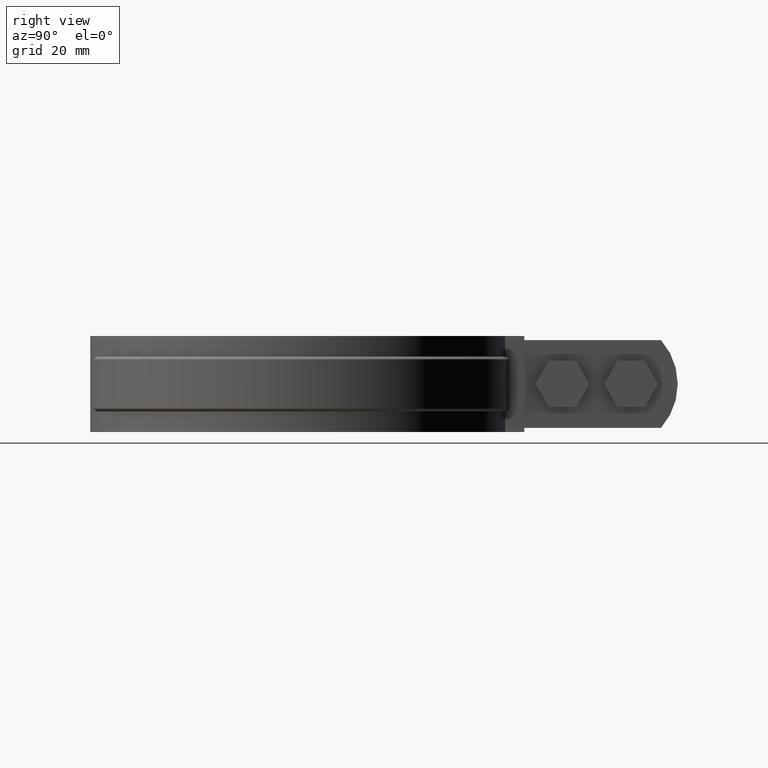
[diagram: clean part render]
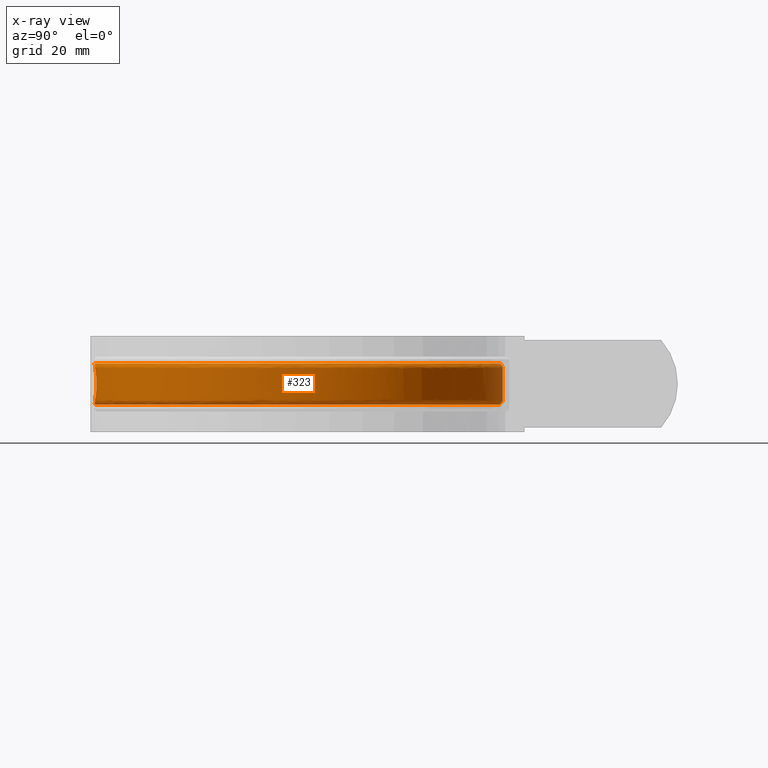
[diagram: x-ray — body ghosted, one internal face saturated and labeled with its STEP entity id]
A machine part, right view, then the same camera in x-ray: the body is ghosted and one INTERNAL B-rep face — a face not visible from any outside direction — is saturated and labeled: STEP entity #323.
In plain terms, the highlighted face is a freeform B-spline surface patch.
Its self-contained STEP definition (entity closure, byte-faithful):
#323 = ADVANCED_FACE( '', ( #487, #488 ), #489, .F. );
#487 = FACE_BOUND( '', #827, .T. );
#488 = FACE_OUTER_BOUND( '', #828, .T. );
#489 = B_SPLINE_SURFACE_WITH_KNOTS( '', 3, 3, ( ( #829, #830, #831, #832, #833, #834, #835, #836, #837, #838, #839, #840, #841, #842, #843, #844, #845 ), ( #846, #847, #848, #849, #850, #851, #852, #853, #854, #855, #856, #857, #858, #859, #860, #861, #862 ), ( #863, #864, #865, #866, #867, #868, #869, #870, #871, #872, #873, #874, #875, #876, #877, #878, #879 ), ( #880, #881, #882, #883, #884, #885, #886, #887, #888, #889, #890, #891, #892, #893, #894, #895, #896 ), ( #897, #898, #899, #900, #901, #902, #903, #904, #905, #906, #907, #908, #909, #910, #911, #912, #913 ), ( #914, #915, #916, #917, #918, #919, #920, #921, #922, #923, #924, #925, #926, #927, #928, #929, #930 ), ( #931, #932, #933, #934, #935, #936, #937, #938, #939, #940, #941, #942, #943, #944, #945, #946, #947 ), ( #948, #949, #950, #951, #952, #953, #954, #955, #956, #957, #958, #959, #960, #961, #962, #963, #964 ), ( #965, #966, #967, #968, #969, #970, #971, #972, #973, #974, #975, #976, #977, #978, #979, #980, #981 ), ( #982, #983, #984, #985, #986, #987, #988, #989, #990, #991, #992, #993, #994, #995, #996, #997, #998 ), ( #999, #1000, #1001, #1002, #1003, #1004, #1005, #1006, #1007, #1008, #1009, #1010, #1011, #1012, #1013, #1014, #1015 ), ( #1016, #1017, #1018, #1019, #1020, #1021, #1022, #1023, #1024, #1025, #1026, #1027, #1028, #1029, #1030, #1031, #1032 ), ( #1033, #1034, #1035, #1036, #1037, #1038, #1039, #1040, #1041, #1042, #1043, #1044, #1045, #1046, #1047, #1048, #1049 ), ( #1050, #1051, #1052, #1053, #1054, #1055, #1056, #1057, #1058, #1059, #1060, #1061, #1062, #1063, #1064, #1065, #1066 ), ( #1067, #1068, #1069, #1070, #1071, #1072, #1073, #1074, #1075, #1076, #1077, #1078, #1079, #1080, #1081, #1082, #1083 ), ( #1084, #1085, #1086, #1087, #1088, #1089, #1090, #1091, #1092, #1093, #1094, #1095, #1096, #1097, #1098, #1099, #1100 ), ( #1101, #1102, #1103, #1104, #1105, #1106, #1107, #1108, #1109, #1110, #1111, #1112, #1113, #1114, #1115, #1116, #1117 ), ( #1118, #1119, #1120, #1121, #1122, #1123, #1124, #1125, #1126, #1127, #1128, #1129, #1130, #1131, #1132, #1133, #1134 ), ( #1135, #1136, #1137, #1138, #1139, #1140, #1141, #1142, #1143, #1144, #1145, #1146, #1147, #1148, #1149, #1150, #1151 ), ( #1152, #1153, #1154, #1155, #1156, #1157, #1158, #1159, #1160, #1161, #1162, #1163, #1164, #1165, #1166, #1167, #1168 ), ( #1169, #1170, #1171, #1172, #1173, #1174, #1175, #1176, #1177, #1178, #1179, #1180, #1181, #1182, #1183, #1184, #1185 ), ( #1186, #1187, #1188, #1189, #1190, #1191, #1192, #1193, #1194, #1195, #1196, #1197, #1198, #1199, #1200, #1201, #1202 ) ), .UNSPECIFIED., .F., .F., .F., ( 4, 3, 1, 1, 1, 3, 3, 1, 1, 1, 3, 4 ), ( 4, 1, 1, 1, 1, 1, 1, 1, 1, 1, 1, 1, 1, 1, 4 ), ( 0.000000000000000, 0.0909090909090909, 0.181818181818182, 0.272727272727273, 0.363636363636364, 0.454545454545455, 0.545454545454545, 0.636363636363636, 0.727272727272727, 0.818181818181818, 0.909090909090909, 1.00000000000000 ), ( 2.93919432429586, 4.00000000000000, 5.00000000000000, 6.00000000000000, 7.00000000000000, 8.00000000000000, 9.00000000000000, 10.0000000000000, 11.0000000000000, 12.0000000000000, 13.0000000000000, 14.0000000000000, 15.0000000000000, 16.0000000000000, 17.0000000000000 ), .UNSPECIFIED. );
#827 = EDGE_LOOP( '', ( #2333, #2334, #2335, #2336, #2337, #2338 ) );
#828 = EDGE_LOOP( '', ( #2339, #2340, #2341, #2342 ) );
#829 = CARTESIAN_POINT( '', ( -4.61425015195980, 70.7622317509286, -26.5000000000000 ) );
#830 = CARTESIAN_POINT( '', ( -15.5904203630949, 70.0470349368722, -26.5000000000000 ) );
#831 = CARTESIAN_POINT( '', ( -36.6178724669983, 63.5869264265580, -26.5000000000000 ) );
#832 = CARTESIAN_POINT( '', ( -60.4171282819462, 41.3778170815072, -26.5000000000000 ) );
#833 = CARTESIAN_POINT( '', ( -72.2798619034494, 11.7564386340877, -26.5000000000000 ) );
#834 = CARTESIAN_POINT( '', ( -70.4173990652024, -20.0977563256707, -26.5000000000000 ) );
#835 = CARTESIAN_POINT( '', ( -55.1858107136761, -48.1359457803464, -26.5000000000000 ) );
#836 = CARTESIAN_POINT( '', ( -29.4763509782398, -67.0349598757568, -26.5000000000000 ) );
#837 = CARTESIAN_POINT( '', ( 1.82953666322226, -73.2065161750958, -26.5000000000000 ) );
#838 = CARTESIAN_POINT( '', ( 32.7880639153756, -65.4788766479587, -26.5000000000000 ) );
#839 = CARTESIAN_POINT( '', ( 57.5213898570196, -45.3192513699048, -26.5000000000000 ) );
#840 = CARTESIAN_POINT( '', ( 71.3334128422005, -16.5551173620569, -26.5000000000000 ) );
#841 = CARTESIAN_POINT( '', ( 71.6023635221745, 15.3519610054325, -26.5000000000000 ) );
#842 = CARTESIAN_POINT( '', ( 58.2748608361785, 44.3452311182272, -26.5000000000000 ) );
#843 = CARTESIAN_POINT( '', ( 33.8899510704301, 64.9154153993196, -26.5000000000000 ) );
#844 = CARTESIAN_POINT( '', ( 13.3267450073814, 70.4210865172577, -26.5000000000000 ) );
#845 = CARTESIAN_POINT( '', ( 2.96461729470620, 70.8501201839495, -26.5000000000000 ) );
#846 = CARTESIAN_POINT( '', ( -4.58330382231513, 71.8998896366214, -25.3619288125423 ) );
#847 = CARTESIAN_POINT( '', ( -15.7397192382122, 71.1895043673446, -25.3619288125423 ) );
#848 = CARTESIAN_POINT( '', ( -37.1081463681043, 64.6569728626535, -25.3619288125423 ) );
#849 = CARTESIAN_POINT( '', ( -61.3221754302980, 42.1279841595101, -25.3619288125423 ) );
#850 = CARTESIAN_POINT( '', ( -73.4176082499287, 12.0506522216709, -25.3619288125423 ) );
#851 = CARTESIAN_POINT( '', ( -71.5723646246281, -20.3153564475006, -25.3619288125423 ) );
#852 = CARTESIAN_POINT( '', ( -56.1385669859300, -48.8240454349474, -25.3619288125423 ) );
#853 = CARTESIAN_POINT( '', ( -30.0460432527390, -68.0629145587926, -25.3619288125423 ) );
#854 = CARTESIAN_POINT( '', ( 1.75108133303469, -74.3791554281481, -25.3619288125423 ) );
#855 = CARTESIAN_POINT( '', ( 33.2157412539665, -66.5735602607233, -25.3619288125423 ) );
#856 = CARTESIAN_POINT( '', ( 58.3739903704118, -46.1281382677739, -25.3619288125423 ) );
#857 = CARTESIAN_POINT( '', ( 72.4490973285679, -16.9246351334278, -25.3619288125423 ) );
#858 = CARTESIAN_POINT( '', ( 72.7691627760226, 15.4919891642614, -25.3619288125423 ) );
#859 = CARTESIAN_POINT( '', ( 59.2717740308285, 44.9681477001160, -25.3619288125423 ) );
#860 = CARTESIAN_POINT( '', ( 34.5257198776660, 65.9032180638756, -25.3619288125423 ) );
#861 = CARTESIAN_POINT( '', ( 13.6462086014126, 71.5264525608277, -25.3619288125423 ) );
#862 = CARTESIAN_POINT( '', ( 3.11622377686040, 71.9780481525229, -25.3619288125423 ) );
#863 = CARTESIAN_POINT( '', ( -4.55235749267045, 73.0375475223142, -24.2238576250846 ) );
#864 = CARTESIAN_POINT( '', ( -15.8890181133296, 72.3319737978169, -24.2238576250846 ) );
#865 = CARTESIAN_POINT( '', ( -37.5984202692104, 65.7270192987490, -24.2238576250846 ) );
#866 = CARTESIAN_POINT( '', ( -62.2272225786497, 42.8781512375131, -24.2238576250846 ) );
#867 = CARTESIAN_POINT( '', ( -74.5553545964080, 12.3448658092541, -24.2238576250846 ) );
#868 = CARTESIAN_POINT( '', ( -72.7273301840538, -20.5329565693305, -24.2238576250846 ) );
#869 = CARTESIAN_POINT( '', ( -57.0913232581840, -49.5121450895483, -24.2238576250846 ) );
#870 = CARTESIAN_POINT( '', ( -30.6157355272383, -69.0908692418285, -24.2238576250846 ) );
#871 = CARTESIAN_POINT( '', ( 1.67262600284711, -75.5517946812004, -24.2238576250846 ) );
#872 = CARTESIAN_POINT( '', ( 33.6434185925574, -67.6682438734879, -24.2238576250846 ) );
#873 = CARTESIAN_POINT( '', ( 59.2265908838041, -46.9370251656430, -24.2238576250846 ) );
#874 = CARTESIAN_POINT( '', ( 73.5647818149354, -17.2941529047986, -24.2238576250846 ) );
#875 = CARTESIAN_POINT( '', ( 73.9359620298707, 15.6320173230902, -24.2238576250846 ) );
#876 = CARTESIAN_POINT( '', ( 60.2686872254784, 45.5910642820048, -24.2238576250846 ) );
#877 = CARTESIAN_POINT( '', ( 35.1614886849019, 66.8910207284315, -24.2238576250846 ) );
#878 = CARTESIAN_POINT( '', ( 13.9656721954438, 72.6318186043977, -24.2238576250846 ) );
#879 = CARTESIAN_POINT( '', ( 3.26783025901459, 73.1059761210964, -24.2238576250846 ) );
#880 = CARTESIAN_POINT( '', ( -4.52141116302577, 74.1752054080070, -23.0857864376269 ) );
#881 = CARTESIAN_POINT( '', ( -16.0383169884469, 73.4744432282892, -23.0857864376269 ) );
#882 = CARTESIAN_POINT( '', ( -38.0886941703164, 66.7970657348446, -23.0857864376269 ) );
#883 = CARTESIAN_POINT( '', ( -63.1322697270015, 43.6283183155160, -23.0857864376269 ) );
#884 = CARTESIAN_POINT( '', ( -75.6931009428873, 12.6390793968372, -23.0857864376269 ) );
#885 = CARTESIAN_POINT( '', ( -73.8822957434795, -20.7505566911604, -23.0857864376269 ) );
#886 = CARTESIAN_POINT( '', ( -58.0440795304379, -50.2002447441493, -23.0857864376269 ) );
#887 = CARTESIAN_POINT( '', ( -31.1854278017375, -70.1188239248644, -23.0857864376269 ) );
#888 = CARTESIAN_POINT( '', ( 1.59417067265954, -76.7244339342527, -23.0857864376269 ) );
#889 = CARTESIAN_POINT( '', ( 34.0710959311483, -68.7629274862524, -23.0857864376269 ) );
#890 = CARTESIAN_POINT( '', ( 60.0791913971964, -47.7459120635122, -23.0857864376269 ) );
#891 = CARTESIAN_POINT( '', ( 74.6804663013028, -17.6636706761694, -23.0857864376269 ) );
#892 = CARTESIAN_POINT( '', ( 75.1027612837188, 15.7720454819191, -23.0857864376269 ) );
#893 = CARTESIAN_POINT( '', ( 61.2656004201283, 46.2139808638935, -23.0857864376269 ) );
#894 = CARTESIAN_POINT( '', ( 35.7972574921378, 67.8788233929875, -23.0857864376269 ) );
#895 = CARTESIAN_POINT( '', ( 14.2851357894750, 73.7371846479677, -23.0857864376269 ) );
#896 = CARTESIAN_POINT( '', ( 3.41943674116879, 74.2339040896698, -23.0857864376269 ) );
#897 = CARTESIAN_POINT( '', ( -4.51889429902262, 74.2677310875714, -22.9932271442431 ) );
#898 = CARTESIAN_POINT( '', ( -16.0504594611992, 73.5673602306371, -22.9932271442431 ) );
#899 = CARTESIAN_POINT( '', ( -38.1285681310589, 66.8840925773693, -22.9932271442431 ) );
#900 = CARTESIAN_POINT( '', ( -63.2058771827157, 43.6893293800478, -22.9932271442431 ) );
#901 = CARTESIAN_POINT( '', ( -75.7856338169647, 12.6630077785331, -22.9932271442431 ) );
#902 = CARTESIAN_POINT( '', ( -73.9762290555967, -20.7682541021297, -22.9932271442431 ) );
#903 = CARTESIAN_POINT( '', ( -58.1215671676777, -50.2562078671151, -22.9932271442431 ) );
#904 = CARTESIAN_POINT( '', ( -31.2317608562555, -70.2024274464551, -22.9932271442431 ) );
#905 = CARTESIAN_POINT( '', ( 1.58778990315726, -76.8198046473089, -22.9932271442431 ) );
#906 = CARTESIAN_POINT( '', ( 34.1058789154577, -68.8519580695700, -22.9932271442431 ) );
#907 = CARTESIAN_POINT( '', ( 60.1485333697619, -47.8116988091211, -22.9932271442431 ) );
#908 = CARTESIAN_POINT( '', ( 74.7712048850009, -17.6937235447314, -22.9932271442431 ) );
#909 = CARTESIAN_POINT( '', ( 75.1976570298260, 15.7834339676113, -22.9932271442431 ) );
#910 = CARTESIAN_POINT( '', ( 61.3466793384585, 46.2646426496342, -22.9932271442431 ) );
#911 = CARTESIAN_POINT( '', ( 35.8489645489562, 67.9591613521956, -22.9932271442431 ) );
#912 = CARTESIAN_POINT( '', ( 14.3111177533902, 73.8270840330420, -22.9932271442431 ) );
#913 = CARTESIAN_POINT( '', ( 3.43176689152779, 74.3256384353852, -22.9932271442431 ) );
#914 = CARTESIAN_POINT( '', ( -4.51435634995178, 74.4345564786465, -22.7898759680773 ) );
#915 = CARTESIAN_POINT( '', ( -16.0723525483405, 73.7348911834190, -22.7898759680773 ) );
#916 = CARTESIAN_POINT( '', ( -38.2004615678421, 67.0410034707188, -22.7898759680773 ) );
#917 = CARTESIAN_POINT( '', ( -63.3385926909225, 43.7993333783792, -22.7898759680773 ) );
#918 = CARTESIAN_POINT( '', ( -75.9524721798704, 12.7061510621384, -22.7898759680773 ) );
#919 = CARTESIAN_POINT( '', ( -74.1455924323663, -20.8001628383841, -22.7898759680773 ) );
#920 = CARTESIAN_POINT( '', ( -58.2612787098881, -50.3571103400123, -22.7898759680773 ) );
#921 = CARTESIAN_POINT( '', ( -31.3153001501689, -70.3531660333023, -22.7898759680773 ) );
#922 = CARTESIAN_POINT( '', ( 1.57628526603826, -76.9917596826853, -22.7898759680773 ) );
#923 = CARTESIAN_POINT( '', ( 34.1685932342012, -69.0124817420199, -22.7898759680773 ) );
#924 = CARTESIAN_POINT( '', ( 60.2735581385138, -47.9303134425444, -22.7898759680773 ) );
#925 = CARTESIAN_POINT( '', ( 74.9348081115028, -17.7479093834562, -22.7898759680773 ) );
#926 = CARTESIAN_POINT( '', ( 75.3687556916270, 15.8039676031197, -22.7898759680772 ) );
#927 = CARTESIAN_POINT( '', ( 61.4928660222207, 46.3559867203673, -22.7898759680773 ) );
#928 = CARTESIAN_POINT( '', ( 35.9421932614139, 68.1040120739214, -22.7898759680773 ) );
#929 = CARTESIAN_POINT( '', ( 14.3579636810445, 73.9891741699969, -22.7898759680773 ) );
#930 = CARTESIAN_POINT( '', ( 3.45399836462085, 74.4910370379249, -22.7898759680773 ) );
#931 = CARTESIAN_POINT( '', ( -4.50929834940872, 74.6205001517645, -22.4418734431229 ) );
#932 = CARTESIAN_POINT( '', ( -16.0967545953714, 73.9216212760054, -22.4418734431229 ) );
#933 = CARTESIAN_POINT( '', ( -38.2805940322253, 67.2158964391909, -22.4418734431229 ) );
#934 = CARTESIAN_POINT( '', ( -63.4865174697386, 43.9219438957327, -22.4418734431229 ) );
#935 = CARTESIAN_POINT( '', ( -76.1384303113979, 12.7542385898956, -22.4418734431229 ) );
#936 = CARTESIAN_POINT( '', ( -74.3343649457424, -20.8357283334532, -22.4418734431229 ) );
#937 = CARTESIAN_POINT( '', ( -58.4170012720723, -50.4695762920853, -22.4418734431229 ) );
#938 = CARTESIAN_POINT( '', ( -31.4084130933477, -70.5211793455347, -22.4418734431229 ) );
#939 = CARTESIAN_POINT( '', ( 1.56346219114533, -77.1834208601773, -22.4418734431229 ) );
#940 = CARTESIAN_POINT( '', ( 34.2384946485429, -69.1914015160745, -22.4418734431229 ) );
#941 = CARTESIAN_POINT( '', ( 60.4129108148818, -48.0625213785315, -22.4418734431229 ) );
#942 = CARTESIAN_POINT( '', ( 75.1171603582062, -17.8083049492543, -22.4418734431229 ) );
#943 = CARTESIAN_POINT( '', ( 75.5594623546585, 15.8268544046090, -22.4418734431229 ) );
#944 = CARTESIAN_POINT( '', ( 61.6558057807582, 46.4577988721040, -22.4418734431229 ) );
#945 = CARTESIAN_POINT( '', ( 36.0461060358587, 68.2654627684344, -22.4418734431229 ) );
#946 = CARTESIAN_POINT( '', ( 14.4101781779057, 74.1698399262547, -22.4418734431229 ) );
#947 = CARTESIAN_POINT( '', ( 3.47877757682056, 74.6753904117525, -22.4418734431229 ) );
#948 = CARTESIAN_POINT( '', ( -4.50618364805317, 74.7350037003084, -22.0642686993349 ) );
#949 = CARTESIAN_POINT( '', ( -16.1117813017385, 74.0366090992668, -22.0642686993349 ) );
#950 = CARTESIAN_POINT( '', ( -38.3299393601495, 67.3235949974134, -22.0642686993349 ) );
#951 = CARTESIAN_POINT( '', ( -63.5776090987679, 43.9974470795214, -22.0642686993349 ) );
#952 = CARTESIAN_POINT( '', ( -76.2529427633863, 12.7838507432782, -22.0642686993349 ) );
#953 = CARTESIAN_POINT( '', ( -74.4506104855162, -20.8576294571798, -22.0642686993349 ) );
#954 = CARTESIAN_POINT( '', ( -58.5128947523905, -50.5388324834188, -22.0642686993349 ) );
#955 = CARTESIAN_POINT( '', ( -31.4657517606470, -70.6246414323625, -22.0642686993349 ) );
#956 = CARTESIAN_POINT( '', ( 1.55556578061486, -77.3014452305305, -22.0642686993349 ) );
#957 = CARTESIAN_POINT( '', ( 34.2815397269591, -69.3015797689313, -22.0642686993349 ) );
#958 = CARTESIAN_POINT( '', ( 60.4987237692871, -48.1439346235337, -22.0642686993349 ) );
#959 = CARTESIAN_POINT( '', ( 75.2294523172837, -17.8454963550399, -22.0642686993349 ) );
#960 = CARTESIAN_POINT( '', ( 75.6768989379091, 15.8409480273788, -22.0642686993349 ) );
#961 = CARTESIAN_POINT( '', ( 61.7561435886468, 46.5204944855832, -22.0642686993349 ) );
#962 = CARTESIAN_POINT( '', ( 36.1100952064147, 68.3648836152243, -22.0642686993349 ) );
#963 = CARTESIAN_POINT( '', ( 14.4423317063145, 74.2810933496436, -22.0642686993349 ) );
#964 = CARTESIAN_POINT( '', ( 3.49403654035189, 74.7889146588287, -22.0642686993349 ) );
#965 = CARTESIAN_POINT( '', ( -4.50548251075870, 74.7607791115174, -21.8024714832808 ) );
#966 = CARTESIAN_POINT( '', ( -16.1151639002750, 74.0624935235164, -21.8024714832808 ) );
#967 = CARTESIAN_POINT( '', ( -38.3410472789404, 67.3478385659326, -21.8024714832808 ) );
#968 = CARTESIAN_POINT( '', ( -63.5981143514503, 44.0144432829971, -21.8024714832808 ) );
#969 = CARTESIAN_POINT( '', ( -76.2787201788122, 12.7905166103184, -21.8024714832808 ) );
#970 = CARTESIAN_POINT( '', ( -74.4767780290289, -20.8625595268342, -21.8024714832809 ) );
#971 = CARTESIAN_POINT( '', ( -58.5344809295780, -50.5544224527524, -21.8024714832808 ) );
#972 = CARTESIAN_POINT( '', ( -31.4786590263747, -70.6479313466616, -21.8024714832808 ) );
#973 = CARTESIAN_POINT( '', ( 1.55378825292173, -77.3280131990977, -21.8024714832808 ) );
#974 = CARTESIAN_POINT( '', ( 34.2912294231372, -69.3263815310582, -21.8024714832808 ) );
#975 = CARTESIAN_POINT( '', ( 60.5180407617732, -48.1622612159798, -21.8024714832808 ) );
#976 = CARTESIAN_POINT( '', ( 75.2547298869092, -17.8538683556438, -21.8024714832808 ) );
#977 = CARTESIAN_POINT( '', ( 75.7033345921990, 15.8441205833994, -21.8024714832808 ) );
#978 = CARTESIAN_POINT( '', ( 61.7787302096819, 46.5346076308873, -21.8024714832809 ) );
#979 = CARTESIAN_POINT( '', ( 36.1244995389003, 68.3872638230112, -21.8024714832808 ) );
#980 = CARTESIAN_POINT( '', ( 14.4495696515756, 74.3061371388774, -21.8024714832808 ) );
#981 = CARTESIAN_POINT( '', ( 3.49747142131972, 74.8144696236118, -21.8024714832808 ) );
#982 = CARTESIAN_POINT( '', ( -4.50548251075870, 74.7607791115174, -21.6715728752538 ) );
#983 = CARTESIAN_POINT( '', ( -16.1151639002750, 74.0624935235164, -21.6715728752538 ) );
#984 = CARTESIAN_POINT( '', ( -38.3410472789404, 67.3478385659326, -21.6715728752538 ) );
#985 = CARTESIAN_POINT( '', ( -63.5981143514503, 44.0144432829971, -21.6715728752538 ) );
#986 = CARTESIAN_POINT( '', ( -76.2787201788122, 12.7905166103184, -21.6715728752538 ) );
#987 = CARTESIAN_POINT( '', ( -74.4767780290289, -20.8625595268342, -21.6715728752538 ) );
#988 = CARTESIAN_POINT( '', ( -58.5344809295780, -50.5544224527524, -21.6715728752538 ) );
#989 = CARTESIAN_POINT( '', ( -31.4786590263747, -70.6479313466616, -21.6715728752538 ) );
#990 = CARTESIAN_POINT( '', ( 1.55378825292173, -77.3280131990977, -21.6715728752538 ) );
#991 = CARTESIAN_POINT( '', ( 34.2912294231372, -69.3263815310582, -21.6715728752538 ) );
#992 = CARTESIAN_POINT( '', ( 60.5180407617732, -48.1622612159798, -21.6715728752538 ) );
#993 = CARTESIAN_POINT( '', ( 75.2547298869092, -17.8538683556438, -21.6715728752538 ) );
#994 = CARTESIAN_POINT( '', ( 75.7033345921990, 15.8441205833994, -21.6715728752538 ) );
#995 = CARTESIAN_POINT( '', ( 61.7787302096819, 46.5346076308873, -21.6715728752538 ) );
#996 = CARTESIAN_POINT( '', ( 36.1244995389003, 68.3872638230112, -21.6715728752538 ) );
#997 = CARTESIAN_POINT( '', ( 14.4495696515756, 74.3061371388774, -21.6715728752538 ) );
#998 = CARTESIAN_POINT( '', ( 3.49747142131972, 74.8144696236118, -21.6715728752538 ) );
#999 = CARTESIAN_POINT( '', ( -4.50548251075870, 74.7607791115174, -17.8905242917513 ) );
#1000 = CARTESIAN_POINT( '', ( -16.1151639002750, 74.0624935235164, -17.8905242917513 ) );
#1001 = CARTESIAN_POINT( '', ( -38.3410472789404, 67.3478385659326, -17.8905242917513 ) );
#1002 = CARTESIAN_POINT( '', ( -63.5981143514503, 44.0144432829971, -17.8905242917513 ) );
#1003 = CARTESIAN_POINT( '', ( -76.2787201788122, 12.7905166103184, -17.8905242917513 ) );
#1004 = CARTESIAN_POINT( '', ( -74.4767780290289, -20.8625595268342, -17.8905242917513 ) );
#1005 = CARTESIAN_POINT( '', ( -58.5344809295780, -50.5544224527524, -17.8905242917513 ) );
#1006 = CARTESIAN_POINT( '', ( -31.4786590263747, -70.6479313466616, -17.8905242917513 ) );
#1007 = CARTESIAN_POINT( '', ( 1.55378825292173, -77.3280131990977, -17.8905242917513 ) );
#1008 = CARTESIAN_POINT( '', ( 34.2912294231372, -69.3263815310582, -17.8905242917513 ) );
#1009 = CARTESIAN_POINT( '', ( 60.5180407617732, -48.1622612159798, -17.8905242917513 ) );
#1010 = CARTESIAN_POINT( '', ( 75.2547298869093, -17.8538683556439, -17.8905242917513 ) );
#1011 = CARTESIAN_POINT( '', ( 75.7033345921990, 15.8441205833994, -17.8905242917512 ) );
#1012 = CARTESIAN_POINT( '', ( 61.7787302096820, 46.5346076308873, -17.8905242917513 ) );
#1013 = CARTESIAN_POINT( '', ( 36.1244995389003, 68.3872638230113, -17.8905242917513 ) );
#1014 = CARTESIAN_POINT( '', ( 14.4495696515756, 74.3061371388774, -17.8905242917513 ) );
#1015 = CARTESIAN_POINT( '', ( 3.49747142131972, 74.8144696236118, -17.8905242917513 ) );
#1016 = CARTESIAN_POINT( '', ( -4.50548251075870, 74.7607791115174, -14.1094757082487 ) );
#1017 = CARTESIAN_POINT( '', ( -16.1151639002750, 74.0624935235164, -14.1094757082487 ) );
#1018 = CARTESIAN_POINT( '', ( -38.3410472789404, 67.3478385659326, -14.1094757082487 ) );
#1019 = CARTESIAN_POINT( '', ( -63.5981143514503, 44.0144432829971, -14.1094757082487 ) );
#1020 = CARTESIAN_POINT( '', ( -76.2787201788122, 12.7905166103184, -14.1094757082487 ) );
#1021 = CARTESIAN_POINT( '', ( -74.4767780290289, -20.8625595268342, -14.1094757082487 ) );
#1022 = CARTESIAN_POINT( '', ( -58.5344809295780, -50.5544224527524, -14.1094757082487 ) );
#1023 = CARTESIAN_POINT( '', ( -31.4786590263747, -70.6479313466616, -14.1094757082487 ) );
#1024 = CARTESIAN_POINT( '', ( 1.55378825292173, -77.3280131990977, -14.1094757082487 ) );
#1025 = CARTESIAN_POINT( '', ( 34.2912294231372, -69.3263815310582, -14.1094757082487 ) );
#1026 = CARTESIAN_POINT( '', ( 60.5180407617732, -48.1622612159798, -14.1094757082487 ) );
#1027 = CARTESIAN_POINT( '', ( 75.2547298869093, -17.8538683556439, -14.1094757082487 ) );
#1028 = CARTESIAN_POINT( '', ( 75.7033345921990, 15.8441205833994, -14.1094757082487 ) );
#1029 = CARTESIAN_POINT( '', ( 61.7787302096820, 46.5346076308873, -14.1094757082487 ) );
#1030 = CARTESIAN_POINT( '', ( 36.1244995389003, 68.3872638230113, -14.1094757082487 ) );
#1031 = CARTESIAN_POINT( '', ( 14.4495696515756, 74.3061371388774, -14.1094757082487 ) );
#1032 = CARTESIAN_POINT( '', ( 3.49747142131972, 74.8144696236118, -14.1094757082487 ) );
#1033 = CARTESIAN_POINT( '', ( -4.50548251075870, 74.7607791115174, -10.3284271247462 ) );
#1034 = CARTESIAN_POINT( '', ( -16.1151639002750, 74.0624935235164, -10.3284271247462 ) );
#1035 = CARTESIAN_POINT( '', ( -38.3410472789404, 67.3478385659326, -10.3284271247462 ) );
#1036 = CARTESIAN_POINT( '', ( -63.5981143514503, 44.0144432829971, -10.3284271247462 ) );
#1037 = CARTESIAN_POINT( '', ( -76.2787201788122, 12.7905166103184, -10.3284271247462 ) );
#1038 = CARTESIAN_POINT( '', ( -74.4767780290289, -20.8625595268342, -10.3284271247462 ) );
#1039 = CARTESIAN_POINT( '', ( -58.5344809295780, -50.5544224527524, -10.3284271247462 ) );
#1040 = CARTESIAN_POINT( '', ( -31.4786590263747, -70.6479313466616, -10.3284271247462 ) );
#1041 = CARTESIAN_POINT( '', ( 1.55378825292173, -77.3280131990977, -10.3284271247462 ) );
#1042 = CARTESIAN_POINT( '', ( 34.2912294231372, -69.3263815310582, -10.3284271247462 ) );
#1043 = CARTESIAN_POINT( '', ( 60.5180407617732, -48.1622612159798, -10.3284271247462 ) );
#1044 = CARTESIAN_POINT( '', ( 75.2547298869093, -17.8538683556439, -10.3284271247462 ) );
#1045 = CARTESIAN_POINT( '', ( 75.7033345921990, 15.8441205833994, -10.3284271247462 ) );
#1046 = CARTESIAN_POINT( '', ( 61.7787302096820, 46.5346076308873, -10.3284271247462 ) );
#1047 = CARTESIAN_POINT( '', ( 36.1244995389003, 68.3872638230113, -10.3284271247462 ) );
#1048 = CARTESIAN_POINT( '', ( 14.4495696515756, 74.3061371388774, -10.3284271247462 ) );
#1049 = CARTESIAN_POINT( '', ( 3.49747142131972, 74.8144696236118, -10.3284271247462 ) );
#1050 = CARTESIAN_POINT( '', ( -4.50548251075870, 74.7607791115174, -10.1975285167192 ) );
#1051 = CARTESIAN_POINT( '', ( -16.1151639002750, 74.0624935235164, -10.1975285167192 ) );
#1052 = CARTESIAN_POINT( '', ( -38.3410472789404, 67.3478385659326, -10.1975285167192 ) );
#1053 = CARTESIAN_POINT( '', ( -63.5981143514503, 44.0144432829971, -10.1975285167192 ) );
#1054 = CARTESIAN_POINT( '', ( -76.2787201788122, 12.7905166103184, -10.1975285167192 ) );
#1055 = CARTESIAN_POINT( '', ( -74.4767780290289, -20.8625595268342, -10.1975285167192 ) );
#1056 = CARTESIAN_POINT( '', ( -58.5344809295780, -50.5544224527524, -10.1975285167192 ) );
#1057 = CARTESIAN_POINT( '', ( -31.4786590263747, -70.6479313466616, -10.1975285167192 ) );
#1058 = CARTESIAN_POINT( '', ( 1.55378825292173, -77.3280131990977, -10.1975285167192 ) );
#1059 = CARTESIAN_POINT( '', ( 34.2912294231372, -69.3263815310582, -10.1975285167192 ) );
#1060 = CARTESIAN_POINT( '', ( 60.5180407617732, -48.1622612159798, -10.1975285167192 ) );
#1061 = CARTESIAN_POINT( '', ( 75.2547298869093, -17.8538683556439, -10.1975285167192 ) );
#1062 = CARTESIAN_POINT( '', ( 75.7033345921990, 15.8441205833994, -10.1975285167192 ) );
#1063 = CARTESIAN_POINT( '', ( 61.7787302096820, 46.5346076308873, -10.1975285167192 ) );
#1064 = CARTESIAN_POINT( '', ( 36.1244995389003, 68.3872638230113, -10.1975285167192 ) );
#1065 = CARTESIAN_POINT( '', ( 14.4495696515756, 74.3061371388774, -10.1975285167192 ) );
#1066 = CARTESIAN_POINT( '', ( 3.49747142131972, 74.8144696236118, -10.1975285167192 ) );
#1067 = CARTESIAN_POINT( '', ( -4.50618364805317, 74.7350037003084, -9.93573130066510 ) );
#1068 = CARTESIAN_POINT( '', ( -16.1117813017385, 74.0366090992668, -9.93573130066510 ) );
#1069 = CARTESIAN_POINT( '', ( -38.3299393601495, 67.3235949974135, -9.93573130066510 ) );
#1070 = CARTESIAN_POINT( '', ( -63.5776090987679, 43.9974470795214, -9.93573130066510 ) );
#1071 = CARTESIAN_POINT( '', ( -76.2529427633863, 12.7838507432782, -9.93573130066510 ) );
#1072 = CARTESIAN_POINT( '', ( -74.4506104855162, -20.8576294571798, -9.93573130066511 ) );
#1073 = CARTESIAN_POINT( '', ( -58.5128947523905, -50.5388324834188, -9.93573130066510 ) );
#1074 = CARTESIAN_POINT( '', ( -31.4657517606470, -70.6246414323625, -9.93573130066511 ) );
#1075 = CARTESIAN_POINT( '', ( 1.55556578061486, -77.3014452305306, -9.93573130066510 ) );
#1076 = CARTESIAN_POINT( '', ( 34.2815397269591, -69.3015797689313, -9.93573130066510 ) );
#1077 = CARTESIAN_POINT( '', ( 60.4987237692871, -48.1439346235337, -9.93573130066510 ) );
#1078 = CARTESIAN_POINT( '', ( 75.2294523172837, -17.8454963550399, -9.93573130066510 ) );
#1079 = CARTESIAN_POINT( '', ( 75.6768989379092, 15.8409480273788, -9.93573130066510 ) );
#1080 = CARTESIAN_POINT( '', ( 61.7561435886468, 46.5204944855833, -9.93573130066511 ) );
#1081 = CARTESIAN_POINT( '', ( 36.1100952064147, 68.3648836152242, -9.93573130066511 ) );
#1082 = CARTESIAN_POINT( '', ( 14.4423317063145, 74.2810933496436, -9.93573130066510 ) );
#1083 = CARTESIAN_POINT( '', ( 3.49403654035189, 74.7889146588287, -9.93573130066510 ) );
#1084 = CARTESIAN_POINT( '', ( -4.50929834940872, 74.6205001517646, -9.55812655687708 ) );
#1085 = CARTESIAN_POINT( '', ( -16.0967545953714, 73.9216212760054, -9.55812655687708 ) );
#1086 = CARTESIAN_POINT( '', ( -38.2805940322253, 67.2158964391909, -9.55812655687708 ) );
#1087 = CARTESIAN_POINT( '', ( -63.4865174697386, 43.9219438957327, -9.55812655687707 ) );
#1088 = CARTESIAN_POINT( '', ( -76.1384303113979, 12.7542385898956, -9.55812655687708 ) );
#1089 = CARTESIAN_POINT( '', ( -74.3343649457424, -20.8357283334532, -9.55812655687708 ) );
#1090 = CARTESIAN_POINT( '', ( -58.4170012720724, -50.4695762920853, -9.55812655687708 ) );
#1091 = CARTESIAN_POINT( '', ( -31.4084130933477, -70.5211793455347, -9.55812655687708 ) );
#1092 = CARTESIAN_POINT( '', ( 1.56346219114533, -77.1834208601773, -9.55812655687708 ) );
#1093 = CARTESIAN_POINT( '', ( 34.2384946485429, -69.1914015160745, -9.55812655687708 ) );
#1094 = CARTESIAN_POINT( '', ( 60.4129108148818, -48.0625213785315, -9.55812655687708 ) );
#1095 = CARTESIAN_POINT( '', ( 75.1171603582062, -17.8083049492543, -9.55812655687708 ) );
#1096 = CARTESIAN_POINT( '', ( 75.5594623546585, 15.8268544046090, -9.55812655687707 ) );
#1097 = CARTESIAN_POINT( '', ( 61.6558057807582, 46.4577988721040, -9.55812655687708 ) );
#1098 = CARTESIAN_POINT( '', ( 36.0461060358587, 68.2654627684344, -9.55812655687708 ) );
#1099 = CARTESIAN_POINT( '', ( 14.4101781779057, 74.1698399262547, -9.55812655687708 ) );
#1100 = CARTESIAN_POINT( '', ( 3.47877757682057, 74.6753904117525, -9.55812655687708 ) );
#1101 = CARTESIAN_POINT( '', ( -4.51435634995178, 74.4345564786465, -9.21012403192273 ) );
#1102 = CARTESIAN_POINT( '', ( -16.0723525483405, 73.7348911834190, -9.21012403192273 ) );
#1103 = CARTESIAN_POINT( '', ( -38.2004615678421, 67.0410034707188, -9.21012403192273 ) );
#1104 = CARTESIAN_POINT( '', ( -63.3385926909225, 43.7993333783792, -9.21012403192272 ) );
#1105 = CARTESIAN_POINT( '', ( -75.9524721798704, 12.7061510621384, -9.21012403192273 ) );
#1106 = CARTESIAN_POINT( '', ( -74.1455924323663, -20.8001628383841, -9.21012403192273 ) );
#1107 = CARTESIAN_POINT( '', ( -58.2612787098881, -50.3571103400123, -9.21012403192273 ) );
#1108 = CARTESIAN_POINT( '', ( -31.3153001501689, -70.3531660333023, -9.21012403192273 ) );
#1109 = CARTESIAN_POINT( '', ( 1.57628526603826, -76.9917596826853, -9.21012403192273 ) );
#1110 = CARTESIAN_POINT( '', ( 34.1685932342012, -69.0124817420199, -9.21012403192273 ) );
#1111 = CARTESIAN_POINT( '', ( 60.2735581385138, -47.9303134425444, -9.21012403192273 ) );
#1112 = CARTESIAN_POINT( '', ( 74.9348081115028, -17.7479093834562, -9.21012403192273 ) );
#1113 = CARTESIAN_POINT( '', ( 75.3687556916270, 15.8039676031197, -9.21012403192272 ) );
#1114 = CARTESIAN_POINT( '', ( 61.4928660222207, 46.3559867203673, -9.21012403192273 ) );
#1115 = CARTESIAN_POINT( '', ( 35.9421932614139, 68.1040120739214, -9.21012403192273 ) );
#1116 = CARTESIAN_POINT( '', ( 14.3579636810445, 73.9891741699969, -9.21012403192273 ) );
#1117 = CARTESIAN_POINT( '', ( 3.45399836462086, 74.4910370379249, -9.21012403192273 ) );
#1118 = CARTESIAN_POINT( '', ( -4.51889429902262, 74.2677310875714, -9.00677285575690 ) );
#1119 = CARTESIAN_POINT( '', ( -16.0504594611992, 73.5673602306371, -9.00677285575690 ) );
#1120 = CARTESIAN_POINT( '', ( -38.1285681310589, 66.8840925773693, -9.00677285575690 ) );
#1121 = CARTESIAN_POINT( '', ( -63.2058771827157, 43.6893293800478, -9.00677285575690 ) );
#1122 = CARTESIAN_POINT( '', ( -75.7856338169647, 12.6630077785331, -9.00677285575690 ) );
#1123 = CARTESIAN_POINT( '', ( -73.9762290555967, -20.7682541021297, -9.00677285575691 ) );
#1124 = CARTESIAN_POINT( '', ( -58.1215671676777, -50.2562078671151, -9.00677285575690 ) );
#1125 = CARTESIAN_POINT( '', ( -31.2317608562555, -70.2024274464551, -9.00677285575691 ) );
#1126 = CARTESIAN_POINT( '', ( 1.58778990315726, -76.8198046473089, -9.00677285575690 ) );
#1127 = CARTESIAN_POINT( '', ( 34.1058789154577, -68.8519580695700, -9.00677285575690 ) );
#1128 = CARTESIAN_POINT( '', ( 60.1485333697619, -47.8116988091211, -9.00677285575690 ) );
#1129 = CARTESIAN_POINT( '', ( 74.7712048850009, -17.6937235447314, -9.00677285575690 ) );
#1130 = CARTESIAN_POINT( '', ( 75.1976570298260, 15.7834339676113, -9.00677285575690 ) );
#1131 = CARTESIAN_POINT( '', ( 61.3466793384585, 46.2646426496342, -9.00677285575691 ) );
#1132 = CARTESIAN_POINT( '', ( 35.8489645489562, 67.9591613521956, -9.00677285575690 ) );
#1133 = CARTESIAN_POINT( '', ( 14.3111177533902, 73.8270840330420, -9.00677285575690 ) );
#1134 = CARTESIAN_POINT( '', ( 3.43176689152779, 74.3256384353852, -9.00677285575690 ) );
#1135 = CARTESIAN_POINT( '', ( -4.52141116302577, 74.1752054080070, -8.91421356237310 ) );
#1136 = CARTESIAN_POINT( '', ( -16.0383169884469, 73.4744432282892, -8.91421356237310 ) );
#1137 = CARTESIAN_POINT( '', ( -38.0886941703164, 66.7970657348446, -8.91421356237311 ) );
#1138 = CARTESIAN_POINT( '', ( -63.1322697270015, 43.6283183155160, -8.91421356237310 ) );
#1139 = CARTESIAN_POINT( '', ( -75.6931009428873, 12.6390793968372, -8.91421356237310 ) );
#1140 = CARTESIAN_POINT( '', ( -73.8822957434795, -20.7505566911604, -8.91421356237311 ) );
#1141 = CARTESIAN_POINT( '', ( -58.0440795304379, -50.2002447441493, -8.91421356237310 ) );
#1142 = CARTESIAN_POINT( '', ( -31.1854278017375, -70.1188239248644, -8.91421356237311 ) );
#1143 = CARTESIAN_POINT( '', ( 1.59417067265954, -76.7244339342527, -8.91421356237310 ) );
#1144 = CARTESIAN_POINT( '', ( 34.0710959311483, -68.7629274862524, -8.91421356237310 ) );
#1145 = CARTESIAN_POINT( '', ( 60.0791913971964, -47.7459120635122, -8.91421356237310 ) );
#1146 = CARTESIAN_POINT( '', ( 74.6804663013028, -17.6636706761694, -8.91421356237310 ) );
#1147 = CARTESIAN_POINT( '', ( 75.1027612837188, 15.7720454819191, -8.91421356237310 ) );
#1148 = CARTESIAN_POINT( '', ( 61.2656004201283, 46.2139808638935, -8.91421356237311 ) );
#1149 = CARTESIAN_POINT( '', ( 35.7972574921378, 67.8788233929875, -8.91421356237311 ) );
#1150 = CARTESIAN_POINT( '', ( 14.2851357894750, 73.7371846479677, -8.91421356237310 ) );
#1151 = CARTESIAN_POINT( '', ( 3.41943674116879, 74.2339040896698, -8.91421356237310 ) );
#1152 = CARTESIAN_POINT( '', ( -4.55235749267045, 73.0375475223142, -7.77614237491541 ) );
#1153 = CARTESIAN_POINT( '', ( -15.8890181133296, 72.3319737978169, -7.77614237491541 ) );
#1154 = CARTESIAN_POINT( '', ( -37.5984202692104, 65.7270192987491, -7.77614237491541 ) );
#1155 = CARTESIAN_POINT( '', ( -62.2272225786497, 42.8781512375131, -7.77614237491541 ) );
#1156 = CARTESIAN_POINT( '', ( -74.5553545964081, 12.3448658092541, -7.77614237491541 ) );
#1157 = CARTESIAN_POINT( '', ( -72.7273301840538, -20.5329565693305, -7.77614237491541 ) );
#1158 = CARTESIAN_POINT( '', ( -57.0913232581840, -49.5121450895484, -7.77614237491541 ) );
#1159 = CARTESIAN_POINT( '', ( -30.6157355272383, -69.0908692418285, -7.77614237491541 ) );
#1160 = CARTESIAN_POINT( '', ( 1.67262600284711, -75.5517946812004, -7.77614237491541 ) );
#1161 = CARTESIAN_POINT( '', ( 33.6434185925574, -67.6682438734879, -7.77614237491541 ) );
#1162 = CARTESIAN_POINT( '', ( 59.2265908838041, -46.9370251656431, -7.77614237491541 ) );
#1163 = CARTESIAN_POINT( '', ( 73.5647818149354, -17.2941529047986, -7.77614237491541 ) );
#1164 = CARTESIAN_POINT( '', ( 73.9359620298707, 15.6320173230902, -7.77614237491541 ) );
#1165 = CARTESIAN_POINT( '', ( 60.2686872254784, 45.5910642820048, -7.77614237491541 ) );
#1166 = CARTESIAN_POINT( '', ( 35.1614886849019, 66.8910207284315, -7.77614237491541 ) );
#1167 = CARTESIAN_POINT( '', ( 13.9656721954438, 72.6318186043977, -7.77614237491541 ) );
#1168 = CARTESIAN_POINT( '', ( 3.26783025901459, 73.1059761210964, -7.77614237491541 ) );
#1169 = CARTESIAN_POINT( '', ( -4.58330382231512, 71.8998896366214, -6.63807118745771 ) );
#1170 = CARTESIAN_POINT( '', ( -15.7397192382122, 71.1895043673446, -6.63807118745771 ) );
#1171 = CARTESIAN_POINT( '', ( -37.1081463681043, 64.6569728626535, -6.63807118745771 ) );
#1172 = CARTESIAN_POINT( '', ( -61.3221754302980, 42.1279841595102, -6.63807118745771 ) );
#1173 = CARTESIAN_POINT( '', ( -73.4176082499288, 12.0506522216709, -6.63807118745771 ) );
#1174 = CARTESIAN_POINT( '', ( -71.5723646246281, -20.3153564475006, -6.63807118745772 ) );
#1175 = CARTESIAN_POINT( '', ( -56.1385669859300, -48.8240454349474, -6.63807118745771 ) );
#1176 = CARTESIAN_POINT( '', ( -30.0460432527390, -68.0629145587926, -6.63807118745772 ) );
#1177 = CARTESIAN_POINT( '', ( 1.75108133303468, -74.3791554281481, -6.63807118745771 ) );
#1178 = CARTESIAN_POINT( '', ( 33.2157412539665, -66.5735602607233, -6.63807118745771 ) );
#1179 = CARTESIAN_POINT( '', ( 58.3739903704119, -46.1281382677739, -6.63807118745771 ) );
#1180 = CARTESIAN_POINT( '', ( 72.4490973285679, -16.9246351334278, -6.63807118745771 ) );
#1181 = CARTESIAN_POINT( '', ( 72.7691627760226, 15.4919891642614, -6.63807118745771 ) );
#1182 = CARTESIAN_POINT( '', ( 59.2717740308285, 44.9681477001160, -6.63807118745772 ) );
#1183 = CARTESIAN_POINT( '', ( 34.5257198776660, 65.9032180638756, -6.63807118745771 ) );
#1184 = CARTESIAN_POINT( '', ( 13.6462086014126, 71.5264525608277, -6.63807118745771 ) );
#1185 = CARTESIAN_POINT( '', ( 3.11622377686040, 71.9780481525230, -6.63807118745771 ) );
#1186 = CARTESIAN_POINT( '', ( -4.61425015195980, 70.7622317509286, -5.50000000000002 ) );
#1187 = CARTESIAN_POINT( '', ( -15.5904203630949, 70.0470349368723, -5.50000000000002 ) );
#1188 = CARTESIAN_POINT( '', ( -36.6178724669983, 63.5869264265580, -5.50000000000002 ) );
#1189 = CARTESIAN_POINT( '', ( -60.4171282819462, 41.3778170815072, -5.50000000000002 ) );
#1190 = CARTESIAN_POINT( '', ( -72.2798619034495, 11.7564386340877, -5.50000000000002 ) );
#1191 = CARTESIAN_POINT( '', ( -70.4173990652024, -20.0977563256707, -5.50000000000002 ) );
#1192 = CARTESIAN_POINT( '', ( -55.1858107136761, -48.1359457803465, -5.50000000000002 ) );
#1193 = CARTESIAN_POINT( '', ( -29.4763509782398, -67.0349598757568, -5.50000000000002 ) );
#1194 = CARTESIAN_POINT( '', ( 1.82953666322226, -73.2065161750958, -5.50000000000002 ) );
#1195 = CARTESIAN_POINT( '', ( 32.7880639153756, -65.4788766479587, -5.50000000000002 ) );
#1196 = CARTESIAN_POINT( '', ( 57.5213898570196, -45.3192513699048, -5.50000000000002 ) );
#1197 = CARTESIAN_POINT( '', ( 71.3334128422005, -16.5551173620569, -5.50000000000002 ) );
#1198 = CARTESIAN_POINT( '', ( 71.6023635221745, 15.3519610054325, -5.50000000000001 ) );
#1199 = CARTESIAN_POINT( '', ( 58.2748608361786, 44.3452311182273, -5.50000000000002 ) );
#1200 = CARTESIAN_POINT( '', ( 33.8899510704301, 64.9154153993196, -5.50000000000002 ) );
#1201 = CARTESIAN_POINT( '', ( 13.3267450073814, 70.4210865172577, -5.50000000000002 ) );
#1202 = CARTESIAN_POINT( '', ( 2.96461729470620, 70.8501201839495, -5.50000000000002 ) );
#2333 = ORIENTED_EDGE( '', *, *, #4639, .T. );
#2334 = ORIENTED_EDGE( '', *, *, #4640, .T. );
#2335 = ORIENTED_EDGE( '', *, *, #4620, .T. );
#2336 = ORIENTED_EDGE( '', *, *, #4625, .T. );
#2337 = ORIENTED_EDGE( '', *, *, #4636, .T. );
#2338 = ORIENTED_EDGE( '', *, *, #4638, .T. );
#2339 = ORIENTED_EDGE( '', *, *, #4641, .T. );
#2340 = ORIENTED_EDGE( '', *, *, #4642, .T. );
#2341 = ORIENTED_EDGE( '', *, *, #4643, .T. );
#2342 = ORIENTED_EDGE( '', *, *, #4644, .T. );
#4620 = EDGE_CURVE( '', #5019, #5017, #5020, .T. );
#4625 = EDGE_CURVE( '', #5017, #5026, #5028, .T. );
#4636 = EDGE_CURVE( '', #5026, #5044, #5046, .T. );
#4638 = EDGE_CURVE( '', #5044, #5047, #5049, .T. );
#4639 = EDGE_CURVE( '', #5047, #5050, #5051, .T. );
#4640 = EDGE_CURVE( '', #5050, #5019, #5052, .T. );
#4641 = EDGE_CURVE( '', #5053, #5054, #5055, .T. );
#4642 = EDGE_CURVE( '', #5054, #5056, #5057, .T. );
#4643 = EDGE_CURVE( '', #5056, #5058, #5059, .T. );
#4644 = EDGE_CURVE( '', #5058, #5053, #5060, .T. );
#5017 = VERTEX_POINT( '', #5802 );
#5019 = VERTEX_POINT( '', #5805 );
#5020 = B_SPLINE_CURVE_WITH_KNOTS( '', 3, ( #5806, #5807, #5808, #5809, #5810, #5811, #5812, #5813, #5814, #5815, #5816, #5817, #5818, #5819, #5820, #5821, #5822, #5823, #5824, #5825, #5826 ), .UNSPECIFIED., .F., .F., ( 4, 2, 2, 2, 2, 1, 2, 2, 2, 2, 4 ), ( 0.000000000000000, 0.00137877618133595, 0.00275755236267189, 0.00413632854400784, 0.00482571663467582, 0.00551510472534379, 0.00620449281601177, 0.00689388090667974, 0.00827265708801569, 0.00965143326935165, 0.0110302094506876 ), .UNSPECIFIED. );
#5026 = VERTEX_POINT( '', #5858 );
#5028 = B_SPLINE_CURVE_WITH_KNOTS( '', 3, ( #5861, #5862, #5863, #5864, #5865 ), .UNSPECIFIED., .F., .F., ( 4, 1, 4 ), ( 0.000000000000000, 0.00956713363214640, 0.0160534209537624 ), .UNSPECIFIED. );
#5044 = VERTEX_POINT( '', #6106 );
#5046 = B_SPLINE_CURVE_WITH_KNOTS( '', 3, ( #6109, #6110, #6111, #6112, #6113, #6114, #6115, #6116, #6117, #6118, #6119, #6120, #6121, #6122, #6123, #6124, #6125, #6126, #6127, #6128, #6129, #6130, #6131, #6132 ), .UNSPECIFIED., .F., .F., ( 4, 2, 2, 2, 2, 2, 2, 2, 2, 2, 2, 4 ), ( 8.84538885469324E-018, 0.00137354571808804, 0.00274709143617608, 0.00343386429522010, 0.00412063715426412, 0.00480741001330813, 0.00549418287235215, 0.00686772859044018, 0.00824127430852822, 0.00892804716757224, 0.00961482002661626, 0.0109883657447043 ), .UNSPECIFIED. );
#5047 = VERTEX_POINT( '', #6133 );
#5049 = B_SPLINE_CURVE_WITH_KNOTS( '', 3, ( #6136, #6137, #6138, #6139, #6140, #6141, #6142, #6143, #6144, #6145, #6146, #6147, #6148, #6149, #6150, #6151, #6152, #6153, #6154, #6155, #6156 ), .UNSPECIFIED., .F., .F., ( 4, 2, 2, 2, 2, 1, 2, 2, 2, 2, 4 ), ( 3.46944695195361E-018, 0.00137878853455431, 0.00275757706910861, 0.00413636560366292, 0.00482575987094007, 0.00551515413821722, 0.00620454840549437, 0.00689394267277153, 0.00827273120732583, 0.00965151974188013, 0.0110303082764344 ), .UNSPECIFIED. );
#5050 = VERTEX_POINT( '', #6157 );
#5051 = B_SPLINE_CURVE_WITH_KNOTS( '', 3, ( #6158, #6159, #6160, #6161, #6162 ), .UNSPECIFIED., .F., .F., ( 4, 1, 4 ), ( 0.000000000000000, 0.00647816087306902, 0.0160333081692193 ), .UNSPECIFIED. );
#5052 = B_SPLINE_CURVE_WITH_KNOTS( '', 3, ( #6163, #6164, #6165, #6166, #6167, #6168, #6169, #6170, #6171, #6172, #6173, #6174, #6175, #6176, #6177, #6178, #6179, #6180, #6181, #6182, #6183, #6184, #6185, #6186 ), .UNSPECIFIED., .F., .F., ( 4, 2, 2, 2, 2, 2, 2, 2, 2, 2, 2, 4 ), ( 1.73472347597681E-018, 0.00137354534392167, 0.00274709068784334, 0.00343386335980417, 0.00412063603176501, 0.00480740870372584, 0.00549418137568667, 0.00686772671960833, 0.00824127206352999, 0.00892804473549082, 0.00961481740745165, 0.0109883627513733 ), .UNSPECIFIED. );
#5053 = VERTEX_POINT( '', #6187 );
#5054 = VERTEX_POINT( '', #6188 );
#5055 = B_SPLINE_CURVE_WITH_KNOTS( '', 3, ( #6189, #6190, #6191, #6192, #6193, #6194, #6195, #6196, #6197, #6198, #6199, #6200, #6201, #6202, #6203, #6204, #6205, #6206, #6207, #6208, #6209, #6210, #6211, #6212, #6213, #6214, #6215, #6216, #6217, #6218, #6219, #6220, #6221, #6222, #6223, #6224, #6225, #6226, #6227, #6228, #6229, #6230, #6231, #6232, #6233, #6234, #6235, #6236, #6237, #6238, #6239, #6240, #6241, #6242, #6243, #6244, #6245, #6246, #6247, #6248, #6249, #6250, #6251, #6252, #6253, #6254, #6255, #6256, #6257, #6258, #6259, #6260, #6261, #6262, #6263, #6264, #6265, #6266, #6267, #6268, #6269, #6270, #6271, #6272, #6273, #6274, #6275, #6276, #6277, #6278, #6279, #6280, #6281, #6282, #6283, #6284, #6285, #6286, #6287, #6288, #6289, #6290, #6291, #6292, #6293, #6294, #6295, #6296, #6297, #6298, #6299, #6300, #6301, #6302, #6303, #6304, #6305, #6306, #6307, #6308, #6309, #6310, #6311, #6312, #6313, #6314, #6315, #6316, #6317, #6318 ), .UNSPECIFIED., .F., .F., ( 4, 2, 2, 2, 2, 2, 2, 2, 2, 2, 2, 2, 2, 2, 2, 2, 2, 2, 2, 2, 2, 2, 2, 2, 2, 2, 2, 2, 2, 2, 2, 2, 2, 2, 2, 2, 2, 2, 2, 2, 2, 2, 2, 2, 2, 2, 2, 2, 2, 2, 2, 2, 2, 2, 2, 2, 2, 2, 2, 2, 2, 2, 2, 2, 4 ), ( 7.92865417905300E-017, 0.00704588124542013, 0.0140917624908402, 0.0176147031135502, 0.0211376437362602, 0.0281835249816803, 0.0422752874725203, 0.0457982280952304, 0.0493211687179404, 0.0563670499633604, 0.0704588124542005, 0.0845505749450406, 0.0915964561904607, 0.0951193968131707, 0.0986423374358808, 0.112734099926721, 0.119779981172141, 0.123302921794851, 0.126825862417561, 0.140917624908401, 0.144440565531111, 0.147963506153821, 0.155009387399241, 0.169101149890081, 0.172624090512791, 0.176147031135501, 0.183192912380921, 0.190238793626342, 0.193761734249052, 0.197284674871762, 0.211376437362602, 0.218422318608022, 0.221945259230732, 0.225468199853442, 0.239559962344282, 0.246605843589702, 0.253651724835122, 0.267743487325962, 0.271266427948672, 0.274789368571382, 0.281835249816802, 0.288881131062222, 0.295927012307642, 0.299449952930352, 0.302972893553062, 0.310018774798482, 0.317064656043902, 0.320587596666612, 0.324110537289322, 0.338202299780162, 0.345248181025582, 0.348771121648292, 0.352294062271002, 0.366385824761842, 0.369908765384552, 0.373431706007262, 0.380477587252682, 0.387523468498102, 0.394569349743522, 0.398092290366232, 0.401615230988942, 0.408661112234362, 0.422752874725202, 0.436844637216042, 0.450936399706882 ), .UNSPECIFIED. );
#5056 = VERTEX_POINT( '', #6319 );
#5057 = B_SPLINE_CURVE_WITH_KNOTS( '', 3, ( #6320, #6321, #6322, #6323, #6324, #6325, #6326, #6327, #6328, #6329, #6330, #6331, #6332, #6333, #6334, #6335, #6336, #6337, #6338, #6339, #6340, #6341, #6342, #6343, #6344, #6345, #6346, #6347, #6348, #6349, #6350, #6351, #6352, #6353, #6354, #6355, #6356, #6357, #6358 ), .UNSPECIFIED., .F., .F., ( 4, 2, 2, 2, 2, 2, 2, 2, 2, 1, 1, 1, 2, 2, 2, 2, 2, 2, 2, 2, 4 ), ( 3.46944695195361E-018, 0.000550723594182440, 0.00110144718836488, 0.00137680898545609, 0.00165217078254731, 0.00220289437672977, 0.00275361797091223, 0.00302897976800345, 0.00330434156509468, 0.00440578875345957, 0.00881157750691915, 0.0132173662603787, 0.0143188134487436, 0.0145941752458348, 0.0148695370429261, 0.0154202606371085, 0.0159709842312909, 0.0162463460283822, 0.0165217078254734, 0.0170724314196558, 0.0176231550138383 ), .UNSPECIFIED. );
#5058 = VERTEX_POINT( '', #6359 );
#5059 = B_SPLINE_CURVE_WITH_KNOTS( '', 3, ( #6360, #6361, #6362, #6363, #6364, #6365, #6366, #6367, #6368, #6369, #6370, #6371, #6372, #6373, #6374, #6375, #6376, #6377, #6378, #6379, #6380, #6381, #6382, #6383, #6384, #6385, #6386, #6387, #6388, #6389, #6390, #6391, #6392, #6393, #6394, #6395, #6396, #6397, #6398, #6399, #6400, #6401, #6402, #6403, #6404, #6405, #6406, #6407, #6408, #6409, #6410, #6411, #6412, #6413, #6414, #6415, #6416, #6417, #6418, #6419, #6420, #6421, #6422, #6423, #6424, #6425, #6426, #6427, #6428, #6429, #6430, #6431, #6432, #6433, #6434, #6435, #6436, #6437, #6438, #6439, #6440, #6441, #6442, #6443, #6444, #6445, #6446, #6447, #6448, #6449, #6450, #6451, #6452, #6453, #6454, #6455, #6456, #6457, #6458, #6459, #6460, #6461, #6462, #6463, #6464, #6465, #6466, #6467, #6468, #6469, #6470, #6471, #6472, #6473, #6474, #6475, #6476, #6477, #6478, #6479, #6480, #6481, #6482, #6483, #6484, #6485, #6486, #6487, #6488, #6489, #6490, #6491, #6492, #6493 ), .UNSPECIFIED., .F., .F., ( 4, 2, 2, 2, 2, 2, 2, 2, 2, 2, 2, 2, 2, 2, 2, 2, 2, 2, 2, 2, 2, 2, 2, 2, 2, 2, 2, 2, 2, 2, 2, 2, 2, 2, 2, 2, 2, 2, 2, 2, 2, 2, 2, 2, 2, 2, 2, 2, 2, 2, 2, 2, 2, 2, 2, 2, 2, 2, 2, 2, 2, 2, 2, 2, 2, 2, 4 ), ( 5.21860643465770E-017, 0.00704587842230165, 0.0140917568446032, 0.0176146960557540, 0.0211376352669048, 0.0281835136892064, 0.0422752705338097, 0.0457982097449605, 0.0493211489561113, 0.0563670273784130, 0.0634129058007147, 0.0704587842230163, 0.0845505410676196, 0.0915964194899213, 0.0951193587010721, 0.0986422979122229, 0.112734054756826, 0.119779933179128, 0.123302872390279, 0.126825811601430, 0.140917568446033, 0.144440507657184, 0.147963446868335, 0.155009325290636, 0.162055203712938, 0.169101082135240, 0.172624021346391, 0.176146960557541, 0.183192838979843, 0.190238717402145, 0.193761656613296, 0.197284595824447, 0.211376352669050, 0.218422231091352, 0.221945170302503, 0.225468109513654, 0.239559866358257, 0.246605744780559, 0.253651623202861, 0.260697501625162, 0.267743380047464, 0.271266319258615, 0.274789258469766, 0.281835136892068, 0.295926893736671, 0.299449832947822, 0.302972772158973, 0.310018650581275, 0.317064529003577, 0.320587468214728, 0.324110407425878, 0.338202164270482, 0.345248042692784, 0.348770981903935, 0.352293921115086, 0.359339799537387, 0.366385677959689, 0.369908617170840, 0.373431556381991, 0.380477434804293, 0.394569191648897, 0.398092130860047, 0.401615070071198, 0.408660948493500, 0.422752705338104, 0.436844462182708, 0.450936219027311 ), .UNSPECIFIED. );
#5060 = B_SPLINE_CURVE_WITH_KNOTS( '', 3, ( #6494, #6495, #6496, #6497, #6498, #6499, #6500, #6501, #6502, #6503, #6504, #6505, #6506, #6507, #6508, #6509, #6510, #6511, #6512, #6513, #6514, #6515, #6516, #6517, #6518, #6519, #6520, #6521, #6522, #6523, #6524, #6525, #6526, #6527, #6528, #6529, #6530, #6531, #6532 ), .UNSPECIFIED., .F., .F., ( 4, 2, 2, 2, 2, 2, 2, 2, 2, 1, 1, 1, 2, 2, 2, 2, 2, 2, 2, 2, 4 ), ( 1.43048962453820E-017, 0.000550617567190004, 0.00110123513437999, 0.00137654391797498, 0.00165185270156996, 0.00220247026875996, 0.00275308783594995, 0.00302839661954495, 0.00330370540313995, 0.00440494053751994, 0.00880988107503995, 0.0132148216125599, 0.0143160567469400, 0.0145913655305350, 0.0148666743141300, 0.0154172918813200, 0.0159679094485100, 0.0162432182321050, 0.0165185270157000, 0.0170691445828900, 0.0176197621500800 ), .UNSPECIFIED. );
#5802 = CARTESIAN_POINT( '', ( -8.00000000000001, -73.9565765417286, -9.00000000000001 ) );
#5805 = CARTESIAN_POINT( '', ( -15.0000000000000, -73.3709520963119, -16.0000000000000 ) );
#5806 = CARTESIAN_POINT( '', ( -15.0000000000000, -73.3709520963119, -16.0000000000000 ) );
#5807 = CARTESIAN_POINT( '', ( -15.0000000000000, -73.3709520963119, -15.5353351803349 ) );
#5808 = CARTESIAN_POINT( '', ( -14.9541889813929, -73.3803593455293, -15.0776379578631 ) );
#5809 = CARTESIAN_POINT( '', ( -14.7737408716711, -73.4169014774885, -14.1757383057374 ) );
#5810 = CARTESIAN_POINT( '', ( -14.6371072297005, -73.4444267310237, -13.7288084107091 ) );
#5811 = CARTESIAN_POINT( '', ( -14.2848412317595, -73.5137702624500, -12.8838686957408 ) );
#5812 = CARTESIAN_POINT( '', ( -14.0689386251070, -73.5556530769555, -12.4815369434395 ) );
#5813 = CARTESIAN_POINT( '', ( -13.6844687976314, -73.6278506648787, -11.9085804336785 ) );
#5814 = CARTESIAN_POINT( '', ( -13.5461906223035, -73.6534696189308, -11.7230805800371 ) );
#5815 = CARTESIAN_POINT( '', ( -13.2552917754260, -73.7064273410086, -11.3702939079330 ) );
#5816 = CARTESIAN_POINT( '', ( -12.9486918132329, -73.7613622413616, -11.0335902228203 ) );
#5817 = CARTESIAN_POINT( '', ( -12.6111699547777, -73.8195774846224, -10.7284531388164 ) );
#5818 = CARTESIAN_POINT( '', ( -12.2579717285559, -73.8791468185183, -10.4392652085972 ) );
#5819 = CARTESIAN_POINT( '', ( -12.0724762913012, -73.9136999282909, -10.3019664556166 ) );
#5820 = CARTESIAN_POINT( '', ( -11.4996329956001, -73.9762545017010, -9.92026591365850 ) );
#5821 = CARTESIAN_POINT( '', ( -11.0981030777122, -73.9732331528922, -9.70643633593734 ) );
#5822 = CARTESIAN_POINT( '', ( -10.2569783421449, -73.9429498924613, -9.35822049170342 ) );
#5823 = CARTESIAN_POINT( '', ( -9.81265721747021, -73.9146567948882, -9.22329256850016 ) );
#5824 = CARTESIAN_POINT( '', ( -8.91479574130206, -73.8955803479667, -9.04495589144918 ) );
#5825 = CARTESIAN_POINT( '', ( -8.46014417222484, -73.9065046168418, -9.00000000000001 ) );
#5826 = CARTESIAN_POINT( '', ( -8.00000000000001, -73.9565765417286, -9.00000000000001 ) );
#5858 = CARTESIAN_POINT( '', ( 7.99999999999999, -73.9587154829955, -9.00000000000001 ) );
#5861 = CARTESIAN_POINT( '', ( -8.00000000000001, -73.9565765417286, -9.00000000000001 ) );
#5862 = CARTESIAN_POINT( '', ( -4.83356811899209, -74.3011410258082, -9.00000000000001 ) );
#5863 = CARTESIAN_POINT( '', ( 0.515981779137635, -74.5393708846420, -9.00000000000001 ) );
#5864 = CARTESIAN_POINT( '', ( 5.85342915474732, -74.1924494027276, -9.00000000000001 ) );
#5865 = CARTESIAN_POINT( '', ( 7.99999999999998, -73.9587154829955, -9.00000000000001 ) );
#6106 = CARTESIAN_POINT( '', ( 15.0000000000000, -73.3714122438786, -16.0000000000000 ) );
#6109 = CARTESIAN_POINT( '', ( 7.99999999999998, -73.9587154829955, -9.00000000000001 ) );
#6110 = CARTESIAN_POINT( '', ( 8.46136324052365, -73.9084789679201, -9.00000000000001 ) );
#6111 = CARTESIAN_POINT( '', ( 8.91719072804909, -73.8975845316981, -9.04519225089761 ) );
#6112 = CARTESIAN_POINT( '', ( 9.81731413640289, -73.9167585461143, -9.22445876787514 ) );
#6113 = CARTESIAN_POINT( '', ( 10.2625866639123, -73.9451191625538, -9.35994598385333 ) );
#6114 = CARTESIAN_POINT( '', ( 10.8967985471252, -73.9675803863599, -9.62340513168368 ) );
#6115 = CARTESIAN_POINT( '', ( 11.1036576350732, -73.9717959108577, -9.72146579743459 ) );
#6116 = CARTESIAN_POINT( '', ( 11.5082889160655, -73.9659422263087, -9.93826828951137 ) );
#6117 = CARTESIAN_POINT( '', ( 11.7072948364681, -73.9557389566073, -10.0578659585147 ) );
#6118 = CARTESIAN_POINT( '', ( 12.0896850379608, -73.9124411539191, -10.3142750451889 ) );
#6119 = CARTESIAN_POINT( '', ( 12.2720796412065, -73.8781197427630, -10.4501325349960 ) );
#6120 = CARTESIAN_POINT( '', ( 12.6232174808488, -73.8187348515127, -10.7390539382451 ) );
#6121 = CARTESIAN_POINT( '', ( 12.7915336438908, -73.7896295229080, -10.8918569524053 ) );
#6122 = CARTESIAN_POINT( '', ( 13.2746220040334, -73.7045454012872, -11.3754953848572 ) );
#6123 = CARTESIAN_POINT( '', ( 13.5688771954361, -73.6505246538784, -11.7344040323791 ) );
#6124 = CARTESIAN_POINT( '', ( 14.0749547509060, -73.5552622225193, -12.4924899214292 ) );
#6125 = CARTESIAN_POINT( '', ( 14.2901765194486, -73.5134341428876, -12.8942592634346 ) );
#6126 = CARTESIAN_POINT( '', ( 14.5546087521209, -73.4612715694004, -13.5321890978509 ) );
#6127 = CARTESIAN_POINT( '', ( 14.6326974725493, -73.4457046218792, -13.7505957346850 ) );
#6128 = CARTESIAN_POINT( '', ( 14.7655949412338, -73.4190545394456, -14.1891382155638 ) );
#6129 = CARTESIAN_POINT( '', ( 14.8209582485941, -73.4078620425845, -14.4105216799555 ) );
#6130 = CARTESIAN_POINT( '', ( 14.9543459380046, -73.3808016283362, -15.0809115328866 ) );
#6131 = CARTESIAN_POINT( '', ( 15.0000000000000, -73.3714122438786, -15.5360950740222 ) );
#6132 = CARTESIAN_POINT( '', ( 15.0000000000000, -73.3714122438786, -16.0000000000000 ) );
#6133 = CARTESIAN_POINT( '', ( 7.99999999999999, -73.9587154829955, -23.0000000000000 ) );
#6136 = CARTESIAN_POINT( '', ( 15.0000000000000, -73.3714122438786, -16.0000000000000 ) );
#6137 = CARTESIAN_POINT( '', ( 15.0000000000000, -73.3714122438786, -16.4646696543361 ) );
#6138 = CARTESIAN_POINT( '', ( 14.9541880415096, -73.3808354979692, -16.9223706306330 ) );
#6139 = CARTESIAN_POINT( '', ( 14.7737372525646, -73.4174399180192, -17.8242758920045 ) );
#6140 = CARTESIAN_POINT( '', ( 14.6371017862619, -73.4450121611501, -18.2712075578966 ) );
#6141 = CARTESIAN_POINT( '', ( 14.2848334856022, -73.5144743221205, -19.1161469719030 ) );
#6142 = CARTESIAN_POINT( '', ( 14.0689302944659, -73.5564289403842, -19.5184771209662 ) );
#6143 = CARTESIAN_POINT( '', ( 13.6844612715408, -73.6287502219485, -20.0914299572172 ) );
#6144 = CARTESIAN_POINT( '', ( 13.5461849783878, -73.6544127982546, -20.2769265572475 ) );
#6145 = CARTESIAN_POINT( '', ( 13.2552901662616, -73.7074605525330, -20.6297077509253 ) );
#6146 = CARTESIAN_POINT( '', ( 12.9486947753548, -73.7624886609372, -20.9664063592272 ) );
#6147 = CARTESIAN_POINT( '', ( 12.6111783208023, -73.8208017078811, -21.2715394014769 ) );
#6148 = CARTESIAN_POINT( '', ( 12.2579857568716, -73.8804701762827, -21.5607239152686 ) );
#6149 = CARTESIAN_POINT( '', ( 12.0724937860204, -73.9150736528731, -21.6980208503302 ) );
#6150 = CARTESIAN_POINT( '', ( 11.4996637208672, -73.9777811955185, -22.0797156868342 ) );
#6151 = CARTESIAN_POINT( '', ( 11.0981335088300, -73.9748617772520, -22.2935491153131 ) );
#6152 = CARTESIAN_POINT( '', ( 10.2569991264861, -73.9447675112440, -22.6417728543239 ) );
#6153 = CARTESIAN_POINT( '', ( 9.81266903927623, -73.9165628568862, -22.7767046071282 ) );
#6154 = CARTESIAN_POINT( '', ( 8.91479793459041, -73.8976310638158, -22.9550441491835 ) );
#6155 = CARTESIAN_POINT( '', ( 8.46014321106881, -73.9086118134153, -23.0000000000000 ) );
#6156 = CARTESIAN_POINT( '', ( 7.99999999999998, -73.9587154829955, -23.0000000000000 ) );
#6157 = CARTESIAN_POINT( '', ( -8.00000000000001, -73.9565765417286, -23.0000000000000 ) );
#6158 = CARTESIAN_POINT( '', ( 8.00000000000003, -73.9587154829955, -23.0000000000000 ) );
#6159 = CARTESIAN_POINT( '', ( 5.85342915474736, -74.1924494027275, -23.0000000000000 ) );
#6160 = CARTESIAN_POINT( '', ( 0.515981779137655, -74.5393708846420, -23.0000000000000 ) );
#6161 = CARTESIAN_POINT( '', ( -4.83356811899209, -74.3011410258082, -23.0000000000000 ) );
#6162 = CARTESIAN_POINT( '', ( -8.00000000000001, -73.9565765417285, -23.0000000000000 ) );
#6163 = CARTESIAN_POINT( '', ( -8.00000000000001, -73.9565765417285, -23.0000000000000 ) );
#6164 = CARTESIAN_POINT( '', ( -8.46136665756572, -73.9063715885479, -23.0000000000000 ) );
#6165 = CARTESIAN_POINT( '', ( -8.91719471596633, -73.8955339432097, -22.9548072208582 ) );
#6166 = CARTESIAN_POINT( '', ( -9.81731795339693, -73.9148539612616, -22.7755402059585 ) );
#6167 = CARTESIAN_POINT( '', ( -10.2625823124798, -73.9433036360828, -22.6400553606619 ) );
#6168 = CARTESIAN_POINT( '', ( -10.8967916648165, -73.9659071585707, -22.3765979588649 ) );
#6169 = CARTESIAN_POINT( '', ( -11.1036517328281, -73.9701718409192, -22.2785372600573 ) );
#6170 = CARTESIAN_POINT( '', ( -11.5082898449979, -73.9644178654647, -22.0617313177094 ) );
#6171 = CARTESIAN_POINT( '', ( -11.7073048620681, -73.9542648274199, -21.9421276976404 ) );
#6172 = CARTESIAN_POINT( '', ( -12.0896909027253, -73.9110682535609, -21.6857206434669 ) );
#6173 = CARTESIAN_POINT( '', ( -12.2720869150332, -73.8767967568035, -21.5498619415442 ) );
#6174 = CARTESIAN_POINT( '', ( -12.6232271542653, -73.8175110255328, -21.2609376407503 ) );
#6175 = CARTESIAN_POINT( '', ( -12.7915451113645, -73.7884546444519, -21.1081324543703 ) );
#6176 = CARTESIAN_POINT( '', ( -13.2746399115358, -73.7035140167884, -20.6244849125238 ) );
#6177 = CARTESIAN_POINT( '', ( -13.5688959931086, -73.6495857304778, -20.2655716539020 ) );
#6178 = CARTESIAN_POINT( '', ( -14.0749723610201, -73.5544865743170, -19.5074798544645 ) );
#6179 = CARTESIAN_POINT( '', ( -14.2901945213493, -73.5127298667780, -19.1057053564510 ) );
#6180 = CARTESIAN_POINT( '', ( -14.5546266683031, -73.4606560040023, -18.4677636553254 ) );
#6181 = CARTESIAN_POINT( '', ( -14.6327112491372, -73.4451162774471, -18.2493630711201 ) );
#6182 = CARTESIAN_POINT( '', ( -14.7656030947637, -73.4185124380282, -17.8108306117008 ) );
#6183 = CARTESIAN_POINT( '', ( -14.8209642640856, -73.4073392748521, -17.5894518456125 ) );
#6184 = CARTESIAN_POINT( '', ( -14.9543471004832, -73.3803254841678, -16.9190751067318 ) );
#6185 = CARTESIAN_POINT( '', ( -15.0000000000000, -73.3709520963119, -16.4638990143138 ) );
#6186 = CARTESIAN_POINT( '', ( -15.0000000000000, -73.3709520963119, -16.0000000000000 ) );
#6187 = CARTESIAN_POINT( '', ( 8.70549738219897, 73.3854502972389, -8.50093267490260 ) );
#6188 = CARTESIAN_POINT( '', ( -8.70549738219895, 73.3854502972390, -8.50120173153013 ) );
#6189 = CARTESIAN_POINT( '', ( 8.70549738219889, 73.3854502972390, -8.50093267490261 ) );
#6190 = CARTESIAN_POINT( '', ( 11.0386278200770, 73.1086779828768, -8.50218096446046 ) );
#6191 = CARTESIAN_POINT( '', ( 13.3600652752888, 72.7200011837140, -8.50394606679155 ) );
#6192 = CARTESIAN_POINT( '', ( 17.9357490972773, 71.7286471407266, -8.50599857525139 ) );
#6193 = CARTESIAN_POINT( '', ( 20.1926911122748, 71.1261108806446, -8.50629020420025 ) );
#6194 = CARTESIAN_POINT( '', ( 23.5320267017815, 70.0629597230022, -8.50540751236699 ) );
#6195 = CARTESIAN_POINT( '', ( 24.6374460426637, 69.6819734224687, -8.50490996117065 ) );
#6196 = CARTESIAN_POINT( '', ( 26.8327885830158, 68.8664114384798, -8.50367328977346 ) );
#6197 = CARTESIAN_POINT( '', ( 27.9250016743270, 68.4308308806279, -8.50293252220050 ) );
#6198 = CARTESIAN_POINT( '', ( 31.1597824380175, 67.0505428204160, -8.50081375256508 ) );
#6199 = CARTESIAN_POINT( '', ( 33.2565035574717, 66.0348377347572, -8.49956767246255 ) );
#6200 = CARTESIAN_POINT( '', ( 39.3727474325431, 62.7099358451955, -8.50133275474224 ) );
#6201 = CARTESIAN_POINT( '', ( 43.2198684122572, 60.1253755052453, -8.50701201677225 ) );
#6202 = CARTESIAN_POINT( '', ( 47.7354012192340, 56.4260973155594, -8.50783091930309 ) );
#6203 = CARTESIAN_POINT( '', ( 48.6251310857743, 55.6613326613348, -8.50775486433763 ) );
#6204 = CARTESIAN_POINT( '', ( 50.3680646322120, 54.0892354535523, -8.50713733206015 ) );
#6205 = CARTESIAN_POINT( '', ( 51.2174098292832, 53.2855145954041, -8.50659840500771 ) );
#6206 = CARTESIAN_POINT( '', ( 53.7003911874877, 50.8223821517835, -8.50453345207902 ) );
#6207 = CARTESIAN_POINT( '', ( 55.2691165976049, 49.1111153259660, -8.50250255522170 ) );
#6208 = CARTESIAN_POINT( '', ( 59.7204825352856, 43.7737542131420, -8.49851346690406 ) );
#6209 = CARTESIAN_POINT( '', ( 62.3506483473922, 39.9459647153641, -8.50293679692616 ) );
#6210 = CARTESIAN_POINT( '', ( 66.9073847724513, 31.7283045448765, -8.50846326035939 ) );
#6211 = CARTESIAN_POINT( '', ( 68.7617991084410, 27.4679991962146, -8.50749100612499 ) );
#6212 = CARTESIAN_POINT( '', ( 70.9310054628618, 20.8654969541986, -8.50263058907981 ) );
#6213 = CARTESIAN_POINT( '', ( 71.5514766727907, 18.6287526516232, -8.50069693535142 ) );
#6214 = CARTESIAN_POINT( '', ( 72.3253641012609, 15.2187472373092, -8.49986736729507 ) );
#6215 = CARTESIAN_POINT( '', ( 72.5571467474698, 14.0729154406956, -8.50003863729226 ) );
#6216 = CARTESIAN_POINT( '', ( 72.9673121872572, 11.7625611710285, -8.50102634661704 ) );
#6217 = CARTESIAN_POINT( '', ( 73.1448544660188, 10.6020705427138, -8.50179800445853 ) );
#6218 = CARTESIAN_POINT( '', ( 73.8910039426483, 4.81120470481898, -8.50588639263677 ) );
#6219 = CARTESIAN_POINT( '', ( 74.0453410375374, 0.178813894452933, -8.50862277389828 ) );
#6220 = CARTESIAN_POINT( '', ( 73.6258773574120, -6.76932857045965, -8.50590975486263 ) );
#6221 = CARTESIAN_POINT( '', ( 73.3768454037364, -9.08530160214989, -8.50412030127908 ) );
#6222 = CARTESIAN_POINT( '', ( 72.8344107534462, -12.5591459442809, -8.50167655365500 ) );
#6223 = CARTESIAN_POINT( '', ( 72.6253035325194, -13.7164633929122, -8.50092112817061 ) );
#6224 = CARTESIAN_POINT( '', ( 72.1552114245767, -16.0062970569183, -8.49999621674987 ) );
#6225 = CARTESIAN_POINT( '', ( 71.8937798662999, -17.1419381855442, -8.49987616402902 ) );
#6226 = CARTESIAN_POINT( '', ( 70.4567827320674, -22.7744993047609, -8.50142776715832 ) );
#6227 = CARTESIAN_POINT( '', ( 68.8951278758969, -27.1356916094738, -8.50697487877595 ) );
#6228 = CARTESIAN_POINT( '', ( 66.4262586993823, -32.4055057893373, -8.50763060394551 ) );
#6229 = CARTESIAN_POINT( '', ( 65.9064300699730, -33.4503093007292, -8.50752451779051 ) );
#6230 = CARTESIAN_POINT( '', ( 64.8137334036863, -35.5212707987562, -8.50685906787848 ) );
#6231 = CARTESIAN_POINT( '', ( 64.2398355189505, -36.5489014127280, -8.50629761744342 ) );
#6232 = CARTESIAN_POINT( '', ( 62.4561858537714, -39.5715743497231, -8.50419421709452 ) );
#6233 = CARTESIAN_POINT( '', ( 61.1796790907235, -41.5166673913785, -8.50217687417718 ) );
#6234 = CARTESIAN_POINT( '', ( 57.0949363632198, -47.1474862681027, -8.49849948011400 ) );
#6235 = CARTESIAN_POINT( '', ( 54.0337372793010, -50.6305617552889, -8.50326901361404 ) );
#6236 = CARTESIAN_POINT( '', ( 49.7734037238365, -54.6368585846177, -8.50655039265557 ) );
#6237 = CARTESIAN_POINT( '', ( 48.8971274513304, -55.4224891526814, -8.50705027967911 ) );
#6238 = CARTESIAN_POINT( '', ( 47.1165098046881, -56.9439714166080, -8.50758044532024 ) );
#6239 = CARTESIAN_POINT( '', ( 46.2113056150314, -57.6808488402969, -8.50761266139965 ) );
#6240 = CARTESIAN_POINT( '', ( 43.4518006774672, -59.8211616087294, -8.50700937274040 ) );
#6241 = CARTESIAN_POINT( '', ( 41.5537038191879, -61.1544316429870, -8.50561308908726 ) );
#6242 = CARTESIAN_POINT( '', ( 37.6424477683405, -63.6366320343661, -8.50233780065220 ) );
#6243 = CARTESIAN_POINT( '', ( 35.6292874869654, -64.7855606471919, -8.50045897730713 ) );
#6244 = CARTESIAN_POINT( '', ( 32.5222768209395, -66.3691401118180, -8.49987377908988 ) );
#6245 = CARTESIAN_POINT( '', ( 31.4720376749021, -66.8736594612211, -8.50014514617232 ) );
#6246 = CARTESIAN_POINT( '', ( 29.3419599016980, -67.8352775056826, -8.50123985661162 ) );
#6247 = CARTESIAN_POINT( '', ( 28.2592586317273, -68.2934735637748, -8.50204198151557 ) );
#6248 = CARTESIAN_POINT( '', ( 22.8083793364097, -70.4483889750535, -8.50620217716198 ) );
#6249 = CARTESIAN_POINT( '', ( 18.3496940726831, -71.7354860994467, -8.50865868979332 ) );
#6250 = CARTESIAN_POINT( '', ( 11.5197426884918, -73.0333885152002, -8.50569717949164 ) );
#6251 = CARTESIAN_POINT( '', ( 9.21927723348436, -73.3598473803365, -8.50385793878906 ) );
#6252 = CARTESIAN_POINT( '', ( 5.73203541589884, -73.6866123531568, -8.50146218134003 ) );
#6253 = CARTESIAN_POINT( '', ( 4.56155253742178, -73.7684177537560, -8.50073968030999 ) );
#6254 = CARTESIAN_POINT( '', ( 2.21692237810316, -73.8760615802832, -8.49992803012737 ) );
#6255 = CARTESIAN_POINT( '', ( 1.04790425122356, -73.9017655913328, -8.49991104491833 ) );
#6256 = CARTESIAN_POINT( '', ( -4.78102656389861, -73.8924675347369, -8.50180640743609 ) );
#6257 = CARTESIAN_POINT( '', ( -9.39288691757920, -73.4476497763068, -8.50719001454465 ) );
#6258 = CARTESIAN_POINT( '', ( -16.2346612886164, -72.1320952726403, -8.50768892407216 ) );
#6259 = CARTESIAN_POINT( '', ( -18.5025008202607, -71.5848187003421, -8.50683809570340 ) );
#6260 = CARTESIAN_POINT( '', ( -23.0117810925828, -70.2651174902002, -8.50392222655469 ) );
#6261 = CARTESIAN_POINT( '', ( -25.2177229204889, -69.5030282657173, -8.50189482448072 ) );
#6262 = CARTESIAN_POINT( '', ( -31.6898343962615, -66.9219122973645, -8.49850326986039 ) );
#6263 = CARTESIAN_POINT( '', ( -35.8136289549223, -64.8099692970274, -8.50360043853272 ) );
#6264 = CARTESIAN_POINT( '', ( -40.7270272398101, -61.6755858173063, -8.50671286521663 ) );
#6265 = CARTESIAN_POINT( '', ( -41.6975392825961, -61.0237807548017, -8.50716917189503 ) );
#6266 = CARTESIAN_POINT( '', ( -43.6137438410849, -59.6693216653079, -8.50761132043189 ) );
#6267 = CARTESIAN_POINT( '', ( -44.5558867798320, -58.9690300389727, -8.50759508426625 ) );
#6268 = CARTESIAN_POINT( '', ( -47.3171747094139, -56.8132834768130, -8.50685093207764 ) );
#6269 = CARTESIAN_POINT( '', ( -49.0788054310145, -55.2978449356592, -8.50536953475673 ) );
#6270 = CARTESIAN_POINT( '', ( -52.4472320874758, -52.1139966172816, -8.50206430211523 ) );
#6271 = CARTESIAN_POINT( '', ( -54.0540212724722, -50.4455801710569, -8.50024229275784 ) );
#6272 = CARTESIAN_POINT( '', ( -57.1121901341366, -46.9552075131357, -8.49980013516858 ) );
#6273 = CARTESIAN_POINT( '', ( -58.5635818010902, -45.1332630938399, -8.50144200423926 ) );
#6274 = CARTESIAN_POINT( '', ( -60.6205143466673, -42.2816375991185, -8.50395343053495 ) );
#6275 = CARTESIAN_POINT( '', ( -61.2855382655636, -41.3117270631685, -8.50480571878225 ) );
#6276 = CARTESIAN_POINT( '', ( -62.5612829297351, -39.3530414533264, -8.50622460006823 ) );
#6277 = CARTESIAN_POINT( '', ( -63.1738768020644, -38.3617369561478, -8.50679371866251 ) );
#6278 = CARTESIAN_POINT( '', ( -64.9370207704388, -35.3525051932676, -8.50783833684413 ) );
#6279 = CARTESIAN_POINT( '', ( -66.0130962778177, -33.2993368266649, -8.50758843682774 ) );
#6280 = CARTESIAN_POINT( '', ( -67.9688275308982, -29.1000549373213, -8.50545830358894 ) );
#6281 = CARTESIAN_POINT( '', ( -68.8484848055609, -26.9539421382058, -8.50357734907266 ) );
#6282 = CARTESIAN_POINT( '', ( -70.0184225026569, -23.6640069397019, -8.50124613223595 ) );
#6283 = CARTESIAN_POINT( '', ( -70.3834359933338, -22.5555481178319, -8.50056658138525 ) );
#6284 = CARTESIAN_POINT( '', ( -71.0626388040265, -20.3145804616293, -8.49988523707724 ) );
#6285 = CARTESIAN_POINT( '', ( -71.3771133332227, -19.1803613393322, -8.49996961278801 ) );
#6286 = CARTESIAN_POINT( '', ( -72.8054740316719, -13.5081476628257, -8.50218184726848 ) );
#6287 = CARTESIAN_POINT( '', ( -73.5056337884424, -8.92391454576290, -8.50738738261255 ) );
#6288 = CARTESIAN_POINT( '', ( -73.9098556203920, -1.97973597683771, -8.50758499947851 ) );
#6289 = CARTESIAN_POINT( '', ( -73.9362058129200, 0.346370667860781, -8.50663493823147 ) );
#6290 = CARTESIAN_POINT( '', ( -73.8087531120121, 3.85306238108645, -8.50438858160333 ) );
#6291 = CARTESIAN_POINT( '', ( -73.7380632730513, 5.02785290136841, -8.50351713366380 ) );
#6292 = CARTESIAN_POINT( '', ( -73.5417397737706, 7.36164323404258, -8.50187013661149 ) );
#6293 = CARTESIAN_POINT( '', ( -73.4162085809002, 8.52205038962983, -8.50109458219117 ) );
#6294 = CARTESIAN_POINT( '', ( -72.6541314812621, 14.2922210487260, -8.49854760585254 ) );
#6295 = CARTESIAN_POINT( '', ( -71.6178678522833, 18.8072291961520, -8.50398389146440 ) );
#6296 = CARTESIAN_POINT( '', ( -69.7914805197506, 24.3251012530319, -8.50696846572447 ) );
#6297 = CARTESIAN_POINT( '', ( -69.3994291553134, 25.4223288651299, -8.50738933426478 ) );
#6298 = CARTESIAN_POINT( '', ( -68.5609282879368, 27.6038889344703, -8.50775505363153 ) );
#6299 = CARTESIAN_POINT( '', ( -68.1132066832126, 28.6910300004438, -8.50769859168721 ) );
#6300 = CARTESIAN_POINT( '', ( -66.6968217971486, 31.9098804570781, -8.50682945709870 ) );
#6301 = CARTESIAN_POINT( '', ( -65.6577213486559, 33.9949722362225, -8.50526494476245 ) );
#6302 = CARTESIAN_POINT( '', ( -63.3956011303317, 38.0472373157785, -8.50190213139221 ) );
#6303 = CARTESIAN_POINT( '', ( -62.1725669111617, 40.0144013525182, -8.50010721095643 ) );
#6304 = CARTESIAN_POINT( '', ( -59.5432730496534, 43.8312562728666, -8.49989825847532 ) );
#6305 = CARTESIAN_POINT( '', ( -58.1370211197264, 45.6809521075062, -8.50153601659281 ) );
#6306 = CARTESIAN_POINT( '', ( -55.8870682605027, 48.3653672970326, -8.50389946593874 ) );
#6307 = CARTESIAN_POINT( '', ( -55.1122348898842, 49.2466108282986, -8.50468596462257 ) );
#6308 = CARTESIAN_POINT( '', ( -53.5208060993863, 50.9716629815386, -8.50596500444187 ) );
#6309 = CARTESIAN_POINT( '', ( -52.7076622412358, 51.8118840452249, -8.50645455679560 ) );
#6310 = CARTESIAN_POINT( '', ( -50.2169712493194, 54.2669489427323, -8.50726187703968 ) );
#6311 = CARTESIAN_POINT( '', ( -48.4882777376272, 55.8163391256768, -8.50685571565098 ) );
#6312 = CARTESIAN_POINT( '', ( -43.1013925771614, 60.2075337754731, -8.50346391846392 ) );
#6313 = CARTESIAN_POINT( '', ( -39.2442380707169, 62.7947192777750, -8.49820578415137 ) );
#6314 = CARTESIAN_POINT( '', ( -30.9753069013099, 67.2593291171964, -8.50349265123319 ) );
#6315 = CARTESIAN_POINT( '', ( -26.7031337347446, 69.0612740278533, -8.50935703576089 ) );
#6316 = CARTESIAN_POINT( '', ( -17.9016967158340, 71.8473811373818, -8.50984261317057 ) );
#6317 = CARTESIAN_POINT( '', ( -13.3717578678492, 72.8319057147917, -8.50446108387760 ) );
#6318 = CARTESIAN_POINT( '', ( -8.70549738219901, 73.3854502972389, -8.50120173153015 ) );
#6319 = CARTESIAN_POINT( '', ( -8.70549738219895, 73.3854502972390, -23.4987982684698 ) );
#6320 = CARTESIAN_POINT( '', ( -8.70549738219895, 73.3854502972389, -8.50120173153014 ) );
#6321 = CARTESIAN_POINT( '', ( -8.52019973550349, 73.4074316051372, -8.50107230233913 ) );
#6322 = CARTESIAN_POINT( '', ( -8.34269299555984, 73.4492468928330, -8.52235481294445 ) );
#6323 = CARTESIAN_POINT( '', ( -8.00180168054698, 73.5688632979902, -8.60366904884881 ) );
#6324 = CARTESIAN_POINT( '', ( -7.84259834861166, 73.6456128918766, -8.66312572386409 ) );
#6325 = CARTESIAN_POINT( '', ( -7.62539181851375, 73.7781518901652, -8.77269180560739 ) );
#6326 = CARTESIAN_POINT( '', ( -7.55581364038384, 73.8257317651870, -8.81302636040609 ) );
#6327 = CARTESIAN_POINT( '', ( -7.42521109623371, 73.9246569352472, -8.89852980278521 ) );
#6328 = CARTESIAN_POINT( '', ( -7.36360250234895, 73.9764878270243, -8.94306540469317 ) );
#6329 = CARTESIAN_POINT( '', ( -7.19574196713587, 74.1308706230988, -9.09674245618833 ) );
#6330 = CARTESIAN_POINT( '', ( -7.10340021878592, 74.2355127948678, -9.22626718682707 ) );
#6331 = CARTESIAN_POINT( '', ( -6.96657002695025, 74.4094792327207, -9.52265853785011 ) );
#6332 = CARTESIAN_POINT( '', ( -6.91963013723643, 74.4806594619143, -9.69277226543189 ) );
#6333 = CARTESIAN_POINT( '', ( -6.87719988518278, 74.5472811080366, -9.95884704713768 ) );
#6334 = CARTESIAN_POINT( '', ( -6.86748131365271, 74.5632525133462, -10.0501257399719 ) );
#6335 = CARTESIAN_POINT( '', ( -6.85636398667790, 74.5815987468400, -10.2361673152322 ) );
#6336 = CARTESIAN_POINT( '', ( -6.85642245955761, 74.5815460286220, -10.3292543893603 ) );
#6337 = CARTESIAN_POINT( '', ( -6.85642245955761, 74.5815460286220, -10.7946874478461 ) );
#6338 = CARTESIAN_POINT( '', ( -6.85642245955766, 74.5815460286220, -12.6564196817892 ) );
#6339 = CARTESIAN_POINT( '', ( -6.85642245955761, 74.5815460286220, -16.0075377028868 ) );
#6340 = CARTESIAN_POINT( '', ( -6.85642245955762, 74.5815460286221, -19.3586557239844 ) );
#6341 = CARTESIAN_POINT( '', ( -6.85642245955765, 74.5815460286220, -21.2203879579275 ) );
#6342 = CARTESIAN_POINT( '', ( -6.85642245955764, 74.5815460286220, -21.6858210164133 ) );
#6343 = CARTESIAN_POINT( '', ( -6.85688802156440, 74.5807212559695, -21.7787898466199 ) );
#6344 = CARTESIAN_POINT( '', ( -6.86858524109148, 74.5614453812864, -21.9612003229861 ) );
#6345 = CARTESIAN_POINT( '', ( -6.87844643972913, 74.5452681062110, -22.0510990760128 ) );
#6346 = CARTESIAN_POINT( '', ( -6.92188401127346, 74.4772416870142, -22.3167298162705 ) );
#6347 = CARTESIAN_POINT( '', ( -6.96822539557991, 74.4071132919852, -22.4823846902970 ) );
#6348 = CARTESIAN_POINT( '', ( -7.10630409676191, 74.2320908727894, -22.7785163963387 ) );
#6349 = CARTESIAN_POINT( '', ( -7.19635425253134, 74.1300375093623, -22.9044270510192 ) );
#6350 = CARTESIAN_POINT( '', ( -7.36689165362795, 73.9736020777663, -23.0596316036758 ) );
#6351 = CARTESIAN_POINT( '', ( -7.42908773678371, 73.9215414630099, -23.1041906032986 ) );
#6352 = CARTESIAN_POINT( '', ( -7.55912658221460, 73.8234116641036, -23.1889497605215 ) );
#6353 = CARTESIAN_POINT( '', ( -7.62749955423771, 73.7767824555200, -23.2284565552124 ) );
#6354 = CARTESIAN_POINT( '', ( -7.84384468123020, 73.6450221746179, -23.3373294006183 ) );
#6355 = CARTESIAN_POINT( '', ( -8.00439493019748, 73.5679396236053, -23.3969636403537 ) );
#6356 = CARTESIAN_POINT( '', ( -8.34044297227878, 73.4500501454798, -23.4770943546598 ) );
#6357 = CARTESIAN_POINT( '', ( -8.52038917087938, 73.4074091329828, -23.4989275653415 ) );
#6358 = CARTESIAN_POINT( '', ( -8.70549738219895, 73.3854502972390, -23.4987982684698 ) );
#6359 = CARTESIAN_POINT( '', ( 8.70549738219896, 73.3854502972390, -23.4990673250974 ) );
#6360 = CARTESIAN_POINT( '', ( -8.70549738219900, 73.3854502972389, -23.4987982684698 ) );
#6361 = CARTESIAN_POINT( '', ( -11.0386266673437, 73.1086781196221, -23.4971685929650 ) );
#6362 = CARTESIAN_POINT( '', ( -13.3600626175100, 72.7200016290027, -23.4947142921142 ) );
#6363 = CARTESIAN_POINT( '', ( -17.9357438827633, 71.7286484010250, -23.4912552535550 ) );
#6364 = CARTESIAN_POINT( '', ( -20.1926847867765, 71.1261126433854, -23.4902470079789 ) );
#6365 = CARTESIAN_POINT( '', ( -23.5320190463268, 70.0629622858450, -23.4904878815741 ) );
#6366 = CARTESIAN_POINT( '', ( -24.6374379968782, 69.6819762600945, -23.4908438235928 ) );
#6367 = CARTESIAN_POINT( '', ( -26.8327798415868, 68.8664148372436, -23.4920196794200 ) );
#6368 = CARTESIAN_POINT( '', ( -27.9249926149105, 68.4308345719726, -23.4928418678365 ) );
#6369 = CARTESIAN_POINT( '', ( -31.1597726673549, 67.0505473382335, -23.4956531056430 ) );
#6370 = CARTESIAN_POINT( '', ( -33.2564934737909, 66.0348428102056, -23.4980324135308 ) );
#6371 = CARTESIAN_POINT( '', ( -39.3727376427385, 62.7099419795583, -23.5017338519713 ) );
#6372 = CARTESIAN_POINT( '', ( -43.2198599115965, 60.1253816498815, -23.4963991815863 ) );
#6373 = CARTESIAN_POINT( '', ( -47.7353936453989, 56.4261037251505, -23.4936354327451 ) );
#6374 = CARTESIAN_POINT( '', ( -48.6251239876496, 55.6613388493953, -23.4932536548873 ) );
#6375 = CARTESIAN_POINT( '', ( -50.3680568469162, 54.0892426900887, -23.4929538618318 ) );
#6376 = CARTESIAN_POINT( '', ( -51.2174017453724, 53.2855223535124, -23.4930358703884 ) );
#6377 = CARTESIAN_POINT( '', ( -53.7003823222511, 50.8223914685073, -23.4939292460226 ) );
#6378 = CARTESIAN_POINT( '', ( -55.2691073617965, 49.1111256762050, -23.4954479145353 ) );
#6379 = CARTESIAN_POINT( '', ( -58.2366841806678, 45.5528869490723, -23.4985724675384 ) );
#6380 = CARTESIAN_POINT( '', ( -59.6355314131072, 43.7059103809342, -23.5001724768811 ) );
#6381 = CARTESIAN_POINT( '', ( -62.2620927871153, 39.8752430828779, -23.4998019911019 ) );
#6382 = CARTESIAN_POINT( '', ( -63.4898231169175, 37.8915653058741, -23.4979624530512 ) );
#6383 = CARTESIAN_POINT( '', ( -66.9073767058749, 31.7283215018588, -23.4928673301632 ) );
#6384 = CARTESIAN_POINT( '', ( -68.7617913916513, 27.4680184786606, -23.4912709190067 ) );
#6385 = CARTESIAN_POINT( '', ( -70.9309995186546, 20.8655171495432, -23.4949347542192 ) );
#6386 = CARTESIAN_POINT( '', ( -71.5514713639623, 18.6287730345698, -23.4969087340705 ) );
#6387 = CARTESIAN_POINT( '', ( -72.3253597460353, 15.2187679326197, -23.4991253878982 ) );
#6388 = CARTESIAN_POINT( '', ( -72.5571427082646, 14.0729362636441, -23.4997243069440 ) );
#6389 = CARTESIAN_POINT( '', ( -72.9673088020371, 11.7625821678841, -23.5001303476460 ) );
#6390 = CARTESIAN_POINT( '', ( -73.1448512404232, 10.6020927120749, -23.4998549191444 ) );
#6391 = CARTESIAN_POINT( '', ( -73.8910020429682, 4.81123090603692, -23.4971243197994 ) );
#6392 = CARTESIAN_POINT( '', ( -74.0453408622911, 0.178843016567814, -23.4922700120728 ) );
#6393 = CARTESIAN_POINT( '', ( -73.6258802229911, -6.76929711632848, -23.4925952674458 ) );
#6394 = CARTESIAN_POINT( '', ( -73.3768493443491, -9.08526968341351, -23.4937211048199 ) );
#6395 = CARTESIAN_POINT( '', ( -72.8344163049983, -12.5591137323102, -23.4960844170285 ) );
#6396 = CARTESIAN_POINT( '', ( -72.6253096830464, -13.7164307950836, -23.4969672018290 ) );
#6397 = CARTESIAN_POINT( '', ( -72.1552187668562, -16.0062639307812, -23.4985598969854 ) );
#6398 = CARTESIAN_POINT( '', ( -71.8937878004537, -17.1419048940669, -23.4992715669027 ) );
#6399 = CARTESIAN_POINT( '', ( -70.4567935718739, -22.7744655847914, -23.5012676956250 ) );
#6400 = CARTESIAN_POINT( '', ( -68.8951410670366, -27.1356579898091, -23.4954700969287 ) );
#6401 = CARTESIAN_POINT( '', ( -66.4262749111692, -32.4054725509431, -23.4928835549562 ) );
#6402 = CARTESIAN_POINT( '', ( -65.9064468870901, -33.4502761604602, -23.4925586007380 ) );
#6403 = CARTESIAN_POINT( '', ( -64.8137514225739, -35.5212379151500, -23.4923913292827 ) );
#6404 = CARTESIAN_POINT( '', ( -64.2398542669555, -36.5488684418154, -23.4925509705765 ) );
#6405 = CARTESIAN_POINT( '', ( -62.4562070644319, -39.5715408038666, -23.4936867438650 ) );
#6406 = CARTESIAN_POINT( '', ( -61.1797020081042, -41.5166335586927, -23.4953748039130 ) );
#6407 = CARTESIAN_POINT( '', ( -58.4565436073128, -45.2705125808571, -23.4986767558423 ) );
#6408 = CARTESIAN_POINT( '', ( -57.0098798405727, -47.0792905026965, -23.5002575457354 ) );
#6409 = CARTESIAN_POINT( '', ( -53.9464212407427, -50.5605540811231, -23.4996645010923 ) );
#6410 = CARTESIAN_POINT( '', ( -52.3296364851390, -52.2330477738127, -23.4978106045391 ) );
#6411 = CARTESIAN_POINT( '', ( -49.7734384788192, -54.6368269173572, -23.4953175110765 ) );
#6412 = CARTESIAN_POINT( '', ( -48.8971629160601, -55.4224578579879, -23.4945200527891 ) );
#6413 = CARTESIAN_POINT( '', ( -47.1165466448366, -56.9439409289971, -23.4932736301742 ) );
#6414 = CARTESIAN_POINT( '', ( -46.2113431212805, -57.6808187871836, -23.4928231990190 ) );
#6415 = CARTESIAN_POINT( '', ( -43.4518401427537, -59.8211329242362, -23.4921724153936 ) );
#6416 = CARTESIAN_POINT( '', ( -41.5537445376956, -61.1544039555106, -23.4927348493514 ) );
#6417 = CARTESIAN_POINT( '', ( -37.6424910365579, -63.6366064213083, -23.4952718869626 ) );
#6418 = CARTESIAN_POINT( '', ( -35.6293320518062, -64.7855361117362, -23.4972463674255 ) );
#6419 = CARTESIAN_POINT( '', ( -32.5223234848615, -66.3691172389821, -23.4993310917171 ) );
#6420 = CARTESIAN_POINT( '', ( -31.4720850783850, -66.8736371453255, -23.4998642679488 ) );
#6421 = CARTESIAN_POINT( '', ( -29.3420087096016, -67.8352563871577, -23.5000914987576 ) );
#6422 = CARTESIAN_POINT( '', ( -28.2593080484487, -68.2934531073255, -23.4997255960683 ) );
#6423 = CARTESIAN_POINT( '', ( -22.8084325502243, -70.4483716191893, -23.4967224141924 ) );
#6424 = CARTESIAN_POINT( '', ( -18.3497500481308, -71.7354717158835, -23.4920730945682 ) );
#6425 = CARTESIAN_POINT( '', ( -11.5198011819729, -73.0333792728374, -23.4926989760049 ) );
#6426 = CARTESIAN_POINT( '', ( -9.21933632783290, -73.3598399442636, -23.4939176664047 ) );
#6427 = CARTESIAN_POINT( '', ( -5.73209522265623, -73.6866076984266, -23.4963247307972 ) );
#6428 = CARTESIAN_POINT( '', ( -4.56161250120019, -73.7684140417565, -23.4972087872424 ) );
#6429 = CARTESIAN_POINT( '', ( -2.21698293810716, -73.8760597588912, -23.4987728695327 ) );
#6430 = CARTESIAN_POINT( '', ( -1.04796502280470, -73.9017647268949, -23.4994481910331 ) );
#6431 = CARTESIAN_POINT( '', ( 4.78096494712749, -73.8924714784124, -23.5011171770365 ) );
#6432 = CARTESIAN_POINT( '', ( 9.39282447656134, -73.4476576749387, -23.4951558162852 ) );
#6433 = CARTESIAN_POINT( '', ( 16.2345979720060, -72.1321095011296, -23.4922948745546 ) );
#6434 = CARTESIAN_POINT( '', ( 18.5024372919293, -71.5848350989745, -23.4922039665303 ) );
#6435 = CARTESIAN_POINT( '', ( 23.0117174905747, -70.2651382979009, -23.4938891883834 ) );
#6436 = CARTESIAN_POINT( '', ( 25.2176593035412, -69.5030513269394, -23.4956448485009 ) );
#6437 = CARTESIAN_POINT( '', ( 29.5324007189631, -67.7823117950342, -23.4989207004958 ) );
#6438 = CARTESIAN_POINT( '', ( 31.6417152507934, -66.8234869308126, -23.5003621114660 ) );
#6439 = CARTESIAN_POINT( '', ( 35.7649776129912, -64.7104545336147, -23.4994402808478 ) );
#6440 = CARTESIAN_POINT( '', ( 37.7789277967344, -63.5562518389103, -23.4975417763734 ) );
#6441 = CARTESIAN_POINT( '', ( 40.7269681532285, -61.6756248315846, -23.4950826275431 ) );
#6442 = CARTESIAN_POINT( '', ( 41.6974806742158, -61.0238207980280, -23.4943139965888 ) );
#6443 = CARTESIAN_POINT( '', ( 43.6136862119021, -59.6693637839065, -23.4931318392177 ) );
#6444 = CARTESIAN_POINT( '', ( 44.5558295684982, -58.9690732608985, -23.4927219538559 ) );
#6445 = CARTESIAN_POINT( '', ( 47.3171189012409, -56.8133299326045, -23.4922093157284 ) );
#6446 = CARTESIAN_POINT( '', ( 49.0787506180386, -55.2978935517578, -23.4928807534535 ) );
#6447 = CARTESIAN_POINT( '', ( 54.1313937036790, -50.5221277229488, -23.4968781826668 ) );
#6448 = CARTESIAN_POINT( '', ( 57.1922437584489, -47.0344069956365, -23.5015167904605 ) );
#6449 = CARTESIAN_POINT( '', ( 60.6204685459922, -42.2817032531409, -23.4982977553460 ) );
#6450 = CARTESIAN_POINT( '', ( 61.2854934276493, -41.3117935749025, -23.4974492719664 ) );
#6451 = CARTESIAN_POINT( '', ( 62.5612400372491, -39.3531096363108, -23.4957744059095 ) );
#6452 = CARTESIAN_POINT( '', ( 63.1738349141258, -38.3618059332843, -23.4949462944812 ) );
#6453 = CARTESIAN_POINT( '', ( 64.9369819937100, -35.3525764044057, -23.4929109142913 ) );
#6454 = CARTESIAN_POINT( '', ( 66.0130597077362, -33.2994093220193, -23.4922158052541 ) );
#6455 = CARTESIAN_POINT( '', ( 67.9687955541869, -29.1001296231767, -23.4928262284322 ) );
#6456 = CARTESIAN_POINT( '', ( 68.8484552121601, -26.9540177286242, -23.4941321817511 ) );
#6457 = CARTESIAN_POINT( '', ( 70.0183965217967, -23.6640838132473, -23.4965729658404 ) );
#6458 = CARTESIAN_POINT( '', ( 70.3834112229224, -22.5556254089069, -23.4974509925365 ) );
#6459 = CARTESIAN_POINT( '', ( 71.0626164565833, -20.3146586313055, -23.4989679178575 ) );
#6460 = CARTESIAN_POINT( '', ( 71.3770921625513, -19.1804401044117, -23.4996056242734 ) );
#6461 = CARTESIAN_POINT( '', ( 72.8054587728028, -13.5082294830221, -23.5009281222753 ) );
#6462 = CARTESIAN_POINT( '', ( 73.5056234066888, -8.92399912208328, -23.4948595601739 ) );
#6463 = CARTESIAN_POINT( '', ( 73.9098532415590, -1.97982372837222, -23.4922579881444 ) );
#6464 = CARTESIAN_POINT( '', ( 73.9362062041019, 0.346282019188513, -23.4922787286265 ) );
#6465 = CARTESIAN_POINT( '', ( 73.8087577851472, 3.85297274666539, -23.4936559622223 ) );
#6466 = CARTESIAN_POINT( '', ( 73.7380693978259, 5.02776300617120, -23.4943258039562 ) );
#6467 = CARTESIAN_POINT( '', ( 73.5417488026857, 7.36155298883915, -23.4958685225001 ) );
#6468 = CARTESIAN_POINT( '', ( 73.4162190658126, 8.52196003386105, -23.4967405565562 ) );
#6469 = CARTESIAN_POINT( '', ( 72.9589771612654, 11.9840623552451, -23.4991611312139 ) );
#6470 = CARTESIAN_POINT( '', ( 72.5467891377078, 14.2666807323536, -23.5004328312594 ) );
#6471 = CARTESIAN_POINT( '', ( 71.5109710545658, 18.7817946997351, -23.4991918880112 ) );
#6472 = CARTESIAN_POINT( '', ( 70.8873390495388, 21.0142898653820, -23.4972500189817 ) );
#6473 = CARTESIAN_POINT( '', ( 69.7915108076627, 24.3250143515177, -23.4948281506473 ) );
#6474 = CARTESIAN_POINT( '', ( 69.3994608262549, 25.4222424048005, -23.4940885094930 ) );
#6475 = CARTESIAN_POINT( '', ( 68.5609627236781, 27.6038034021716, -23.4929815793931 ) );
#6476 = CARTESIAN_POINT( '', ( 68.1132424715219, 28.6909450178784, -23.4926145093543 ) );
#6477 = CARTESIAN_POINT( '', ( 66.6968622170889, 31.9097959004391, -23.4922433669701 ) );
#6478 = CARTESIAN_POINT( '', ( 65.6577648686533, 33.9948881109054, -23.4930273582541 ) );
#6479 = CARTESIAN_POINT( '', ( 62.2645939315611, 40.0732874046935, -23.4972210326189 ) );
#6480 = CARTESIAN_POINT( '', ( 59.6370491548523, 43.8912610152147, -23.5014813341239 ) );
#6481 = CARTESIAN_POINT( '', ( 55.8871351871784, 48.3652899521732, -23.4980321553029 ) );
#6482 = CARTESIAN_POINT( '', ( 55.1123033545908, 49.2465342045219, -23.4971579782949 ) );
#6483 = CARTESIAN_POINT( '', ( 53.5208772128359, 50.9715883073515, -23.4954499152033 ) );
#6484 = CARTESIAN_POINT( '', ( 52.7077346328652, 51.8118103990819, -23.4946208940469 ) );
#6485 = CARTESIAN_POINT( '', ( 50.2170473439845, 54.2668785161612, -23.4926166197357 ) );
#6486 = CARTESIAN_POINT( '', ( 48.4883561229405, 55.8162710258508, -23.4919872843759 ) );
#6487 = CARTESIAN_POINT( '', ( 43.1014774472607, 60.2074729980307, -23.4931054454041 ) );
#6488 = CARTESIAN_POINT( '', ( 39.2443268261470, 62.7946637392868, -23.4988831993817 ) );
#6489 = CARTESIAN_POINT( '', ( 30.9754036656101, 67.2592844886121, -23.5009035837912 ) );
#6490 = CARTESIAN_POINT( '', ( 26.7032278894878, 69.0612387738388, -23.4953762196302 ) );
#6491 = CARTESIAN_POINT( '', ( 17.9017611481253, 71.8473661903522, -23.4931602071504 ) );
#6492 = CARTESIAN_POINT( '', ( 13.3717561781462, 72.8319059152362, -23.4965707470944 ) );
#6493 = CARTESIAN_POINT( '', ( 8.70549738219887, 73.3854502972390, -23.4990673250974 ) );
#6494 = CARTESIAN_POINT( '', ( 8.70549738219897, 73.3854502972390, -23.4990673250974 ) );
#6495 = CARTESIAN_POINT( '', ( 8.52023523223537, 73.4074273942657, -23.4991664454910 ) );
#6496 = CARTESIAN_POINT( '', ( 8.34276432057945, 73.4492305292565, -23.4778649355225 ) );
#6497 = CARTESIAN_POINT( '', ( 8.00194386561090, 73.5688047477808, -23.3965370966367 ) );
#6498 = CARTESIAN_POINT( '', ( 7.84276456391066, 73.6455290574577, -23.3370828855849 ) );
#6499 = CARTESIAN_POINT( '', ( 7.62559193990992, 73.7780209987613, -23.2275350137616 ) );
#6500 = CARTESIAN_POINT( '', ( 7.55602312424469, 73.8255842007067, -23.1872084949407 ) );
#6501 = CARTESIAN_POINT( '', ( 7.42543186373637, 73.9244786414759, -23.1017209045940 ) );
#6502 = CARTESIAN_POINT( '', ( 7.36382387825882, 73.9762965200376, -23.0572019655690 ) );
#6503 = CARTESIAN_POINT( '', ( 7.19595512295481, 74.1306500650241, -22.9036014315212 ) );
#6504 = CARTESIAN_POINT( '', ( 7.10359675263518, 74.2352825703965, -22.7741446516643 ) );
#6505 = CARTESIAN_POINT( '', ( 6.96671231879079, 74.4092787214737, -22.4778785069905 ) );
#6506 = CARTESIAN_POINT( '', ( 6.91973957282538, 74.4804929819230, -22.3078310222212 ) );
#6507 = CARTESIAN_POINT( '', ( 6.87725483961575, 74.5471921570824, -22.0418391953921 ) );
#6508 = CARTESIAN_POINT( '', ( 6.86751840043213, 74.5631915625344, -21.9506031212757 ) );
#6509 = CARTESIAN_POINT( '', ( 6.85635818608792, 74.5816080687018, -21.7645939584047 ) );
#6510 = CARTESIAN_POINT( '', ( 6.85639403606932, 74.5815933893714, -21.6715232565267 ) );
#6511 = CARTESIAN_POINT( '', ( 6.85639403606932, 74.5815933893715, -21.2061706991467 ) );
#6512 = CARTESIAN_POINT( '', ( 6.85639403606931, 74.5815933893715, -19.3447604696270 ) );
#6513 = CARTESIAN_POINT( '', ( 6.85639403606930, 74.5815933893714, -15.9942220564914 ) );
#6514 = CARTESIAN_POINT( '', ( 6.85639403606932, 74.5815933893714, -12.6436836433558 ) );
#6515 = CARTESIAN_POINT( '', ( 6.85639403606932, 74.5815933893715, -10.7822734138360 ) );
#6516 = CARTESIAN_POINT( '', ( 6.85639403606932, 74.5815933893714, -10.3169208564561 ) );
#6517 = CARTESIAN_POINT( '', ( 6.85676847528341, 74.5809216533896, -10.2239376842354 ) );
#6518 = CARTESIAN_POINT( '', ( 6.86830076045251, 74.5619108976900, -10.0415055944771 ) );
#6519 = CARTESIAN_POINT( '', ( 6.87807543327066, 74.5458667508873, -9.95159619833176 ) );
#6520 = CARTESIAN_POINT( '', ( 6.92121765148429, 74.4782508612798, -9.68593059019204 ) );
#6521 = CARTESIAN_POINT( '', ( 6.96736635861604, 74.4083338127182, -9.52007092977986 ) );
#6522 = CARTESIAN_POINT( '', ( 7.10491055185856, 74.2337277620841, -9.22365597720889 ) );
#6523 = CARTESIAN_POINT( '', ( 7.19474129654924, 74.1317355338438, -9.09744001622175 ) );
#6524 = CARTESIAN_POINT( '', ( 7.36483541587581, 73.9753817924780, -8.94190720136134 ) );
#6525 = CARTESIAN_POINT( '', ( 7.42695794382442, 73.9232640663305, -8.89722010257565 ) );
#6526 = CARTESIAN_POINT( '', ( 7.55681737609849, 73.8250426918916, -8.81233264509101 ) );
#6527 = CARTESIAN_POINT( '', ( 7.62509541875248, 73.7783646904705, -8.77275712331179 ) );
#6528 = CARTESIAN_POINT( '', ( 7.84113254233358, 73.6464439027751, -8.66365774998857 ) );
#6529 = CARTESIAN_POINT( '', ( 8.00139613894991, 73.5691685969624, -8.60377014281637 ) );
#6530 = CARTESIAN_POINT( '', ( 8.33906892933448, 73.4503574886774, -8.52284253768661 ) );
#6531 = CARTESIAN_POINT( '', ( 8.52057279745232, 73.4073873499094, -8.50083373511578 ) );
#6532 = CARTESIAN_POINT( '', ( 8.70549738219898, 73.3854502972389, -8.50093267490259 ) );